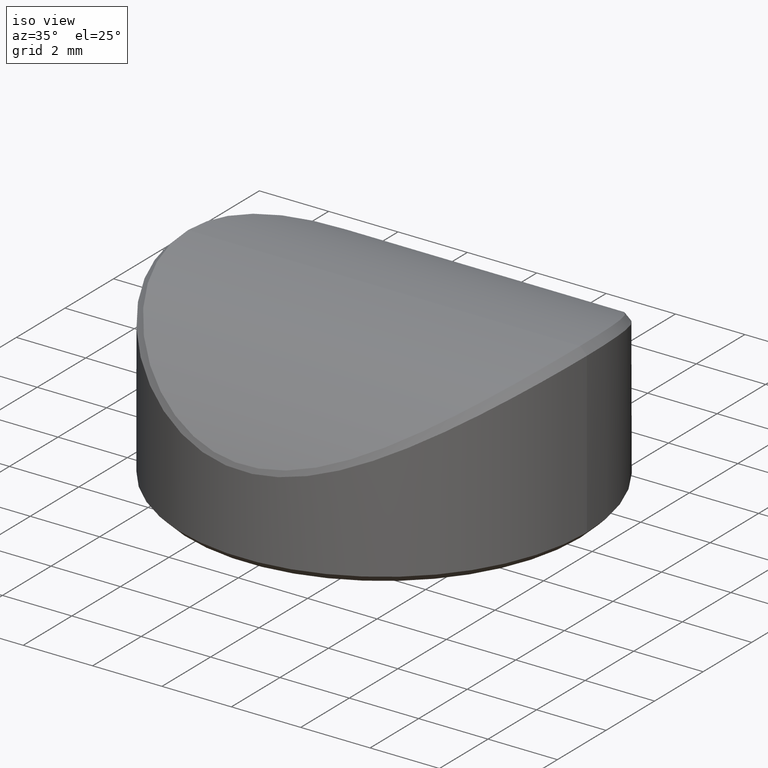
[diagram: clean part render]
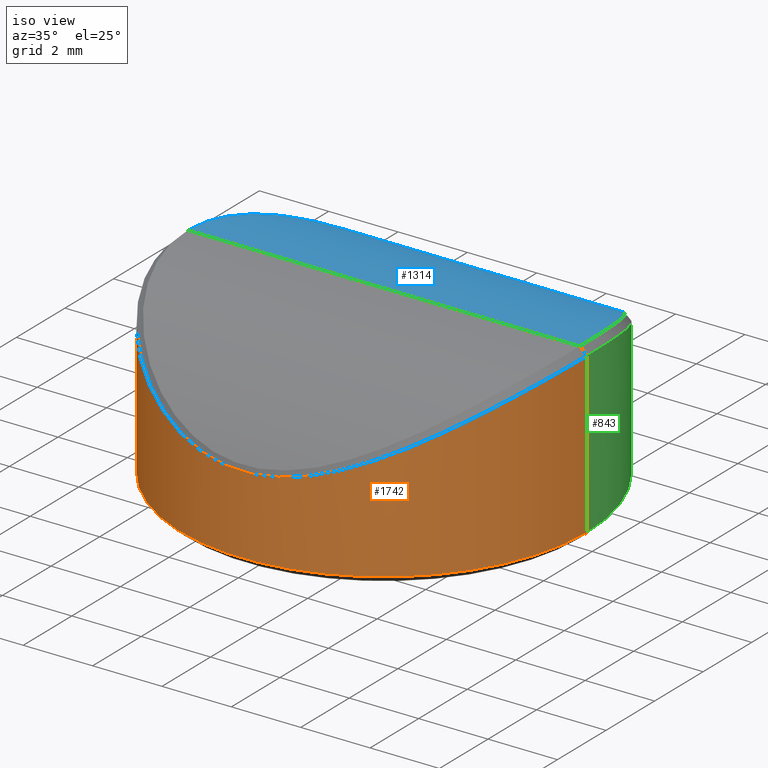
[diagram: same view with three faces highlighted in distinct colors, each labeled with its STEP entity id]
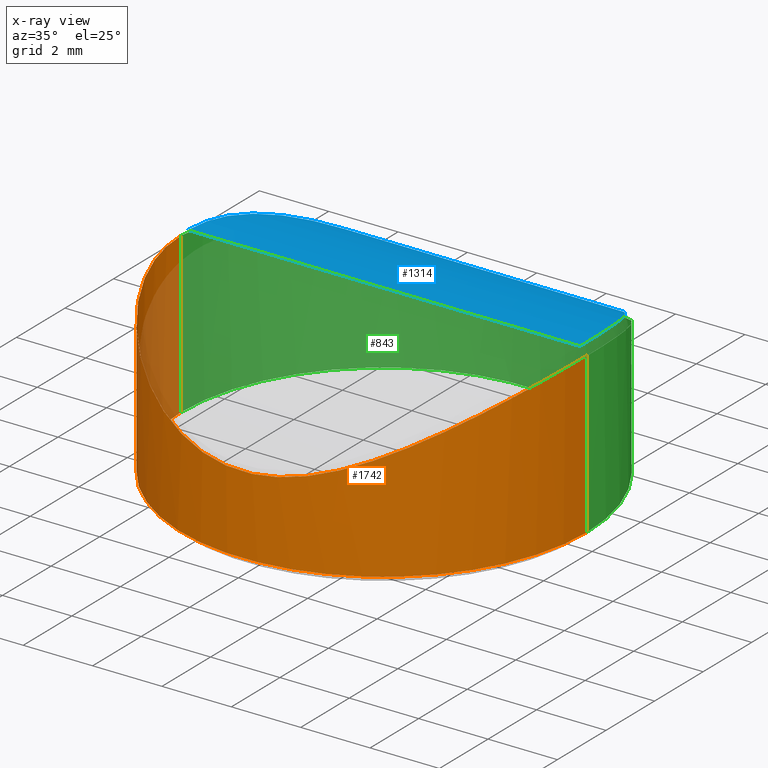
[diagram: x-ray of the same camera — body ghosted, the three highlighted faces saturated]
A machine part, iso view with three faces highlighted in distinct colors.
The next image is the same camera in x-ray (body ghosted, the three faces saturated) — at least one of them is partly hidden behind the body in this view.
Their STEP definitions:

[orange] entity #1742 — the highlighted cylindrical surface (partial cylindrical patch) has radius 5.85 mm, axis along (-0, -0, -1).
#21 = CARTESIAN_POINT ( 'NONE',  ( 5.849999999999999645, -0.1002571511563858653, 4.800000362256402475 ) ) ;
#32 = CARTESIAN_POINT ( 'NONE',  ( 5.636241397043481705, -1.567703619059801268, 4.655283694456312737 ) ) ;
#51 = CARTESIAN_POINT ( 'NONE',  ( -0.7992147437466824433, -5.795963841222624424, 2.509626842431964988 ) ) ;
#62 = CARTESIAN_POINT ( 'NONE',  ( 2.321190677145544612, -5.369832997426352783, 2.886756056087941058 ) ) ;
#67 = CARTESIAN_POINT ( 'NONE',  ( 5.032943372037465224, -2.982317061806385450, 4.262577148965410068 ) ) ;
#74 = CARTESIAN_POINT ( 'NONE',  ( 1.696475671454375611, -5.598830458218269968, 2.690693486021676684 ) ) ;
#78 = CARTESIAN_POINT ( 'NONE',  ( 4.322983038555126889, -3.941418766975174570, 3.834353924872196728 ) ) ;
#79 = CARTESIAN_POINT ( 'NONE',  ( -4.347329935835133163, -3.914792109759390293, 3.848327056161865656 ) ) ;
#87 = CARTESIAN_POINT ( 'NONE',  ( 0.1960758212890180707, -5.847575407008270609, 2.460168763548667314 ) ) ;
#91 = CARTESIAN_POINT ( 'NONE',  ( 4.175820359051846786, -4.097076429639918693, 3.750748920193274216 ) ) ;
#92 = CARTESIAN_POINT ( 'NONE',  ( -5.011083377229572200, -3.018909396968985970, 4.248814439983777724 ) ) ;
#99 = CARTESIAN_POINT ( 'NONE',  ( 1.790627716960177640, -5.569433057588820013, 2.716693745366328017 ) ) ;
#104 = CARTESIAN_POINT ( 'NONE',  ( 3.850442641268848831, -4.404174142716962059, 3.572890753826824639 ) ) ;
#105 = CARTESIAN_POINT ( 'NONE',  ( -5.416322344660787103, -2.212644334234725729, 4.509305661737005089 ) ) ;
#112 = CARTESIAN_POINT ( 'NONE',  ( -3.904387794470526973, -4.356419169627104182, 3.601700390990436595 ) ) ;
#117 = CARTESIAN_POINT ( 'NONE',  ( 4.123513641282251285, -4.149606723216765936, 3.721520050925323897 ) ) ;
#118 = CARTESIAN_POINT ( 'NONE',  ( -5.115733834783660505, -2.837668304563308652, 4.315019396862776802 ) ) ;
#125 = CARTESIAN_POINT ( 'NONE',  ( -1.977132171286536622, -5.505818000685767544, 2.772083576216765266 ) ) ;
#130 = CARTESIAN_POINT ( 'NONE',  ( -5.218612329882787115, -2.645301217034130126, 4.380778903306818073 ) ) ;
#133 = DIRECTION ( 'NONE',  ( -0.000000000000000000, -0.000000000000000000, -1.000000000000000000 ) ) ;
#166 = CARTESIAN_POINT ( 'NONE',  ( -3.485501356859809885, -4.698278379934207827, 3.385554629569242913 ) ) ;
#179 = CARTESIAN_POINT ( 'NONE',  ( -4.070020865524007547, -4.202169639958404090, 3.691843170774587346 ) ) ;
#191 = CARTESIAN_POINT ( 'NONE',  ( -3.475405370232810043, -4.705751476287893809, 3.380565041965954087 ) ) ;
#192 = ORIENTED_EDGE ( 'NONE', *, *, #537, .T. ) ;
#211 = CARTESIAN_POINT ( 'NONE',  ( 5.675008696903578453, -1.426005650508588296, 4.681293954273036739 ) ) ;
#223 = DIRECTION ( 'NONE',  ( -1.000000000000000000, 0.000000000000000000, 0.000000000000000000 ) ) ;
#231 = CARTESIAN_POINT ( 'NONE',  ( 2.102327943100051666, -5.459236307794311571, 2.811935416487588490 ) ) ;
#244 = CARTESIAN_POINT ( 'NONE',  ( -1.587494438388834084, -5.630851806157936679, 2.662101222322077465 ) ) ;
#248 = CARTESIAN_POINT ( 'NONE',  ( 4.006566576517870182, -4.262682047202536850, 3.657004758089502872 ) ) ;
#255 = CARTESIAN_POINT ( 'NONE',  ( -0.9914346284413013688, -5.765585076214239990, 2.538293393073890236 ) ) ;
#257 = VECTOR ( 'NONE', #133, 1000.000000000000000 ) ;
#260 = CARTESIAN_POINT ( 'NONE',  ( 3.664730233357058165, -4.560162655869373971, 3.475798596802699869 ) ) ;
#261 = CARTESIAN_POINT ( 'NONE',  ( -4.657189139760875563, -3.540290751993207863, 4.030992745122410348 ) ) ;
#268 = CARTESIAN_POINT ( 'NONE',  ( 3.280998405336094770, -4.843311128454959480, 3.286594779189646598 ) ) ;
#272 = CARTESIAN_POINT ( 'NONE',  ( 4.723299366382857301, -3.451594643023751185, 4.070959899425256268 ) ) ;
#273 = CARTESIAN_POINT ( 'NONE',  ( -5.565453593937636612, -1.802966329669035028, 4.607977361760977608 ) ) ;
#280 = CARTESIAN_POINT ( 'NONE',  ( 2.824514529974619492, -5.123000588333491478, 3.082524708902495192 ) ) ;
#284 = CARTESIAN_POINT ( 'NONE',  ( 3.545955274710585137, -4.652897645949978234, 3.415632318699482806 ) ) ;
#285 = CARTESIAN_POINT ( 'NONE',  ( -4.961241489788908332, -3.100137648661959844, 4.217567466933967779 ) ) ;
#291 = CARTESIAN_POINT ( 'NONE',  ( -2.772154596843895646, -5.151519540009843467, 3.060683043446253748 ) ) ;
#297 = CARTESIAN_POINT ( 'NONE',  ( 4.856010094929455789, -3.262474650794921605, 4.152193994138118072 ) ) ;
#300 = B_SPLINE_CURVE_WITH_KNOTS ( 'NONE', 3,
 ( #929, #21, #1705, #1331, #2065, #1307, #2226, #578, #1863, #941, #1123, #211, #32, #766, #478, #1753, #429, #976, #1389, #1207, #2282, #1365, #2318, #989, #2126, #1354, #1728, #1717, #1161, #67, #1945, #2292, #1195, #635, #297, #660, #1183, #272, #800, #824, #672, #1000, #1026, #1377, #648, #850, #1741, #1561, #1766, #78, #2305, #2076, #91, #1548, #2099, #117, #1584, #1899, #248, #836, #2112, #1538, #2270, #452, #811, #104, #625, #2088, #1011, #441, #1172, #464, #1911, #260, #1922, #1932, #284, #1572, #1401, #490, #1220, #1957, #308, #2140, #1327, #268, #2278, #448, #1361, #820, #1928, #1557, #1713, #1350, #425, #280, #1749, #1007, #631, #1157, #643, #2084, #412, #1895, #985, #62, #796, #1145, #2288, #231, #961, #2300, #996, #1373, #807, #99, #74, #1724, #1544, #2061, #831, #2095, #972, #1568, #1179, #1883, #1918, #1737, #87, #2108, #460, #1191, #1701, #1534, #1907, #51, #2266, #255, #785, #621, #1522, #2255, #610, #1338, #2072, #244, #437, #1168, #1634, #1034, #1262, #2194, #125, #1995, #1775, #1466, #357, #1383, #1940, #2376, #2207, #857, #2327, #922, #1952, #734, #2313, #304, #291, #2120, #1021, #554, #896, #542, #1593, #1286, #1648, #2181, #346, #1761, #1816, #1842, #1075, #2019, #2364, #722, #191, #166, #1454, #370, #682, #908, #655, #1274, #1441, #530, #1100, #1660, #473, #1202, #1829, #112, #845, #1579, #2006, #1087, #179, #666, #1396, #2134, #484, #1216, #1209, #1415, #1743, #1366, #79, #1730, #2100, #812, #1378, #502, #1390, #1562, #1933, #261, #1585, #1946, #1767, #1027, #1221, #862, #1780, #2113, #285, #92, #1598, #1232, #990, #118, #825, #130, #1012, #1549, #2294, #2306, #465, #105, #453, #1184, #1923, #273, #1001, #2319, #837, #2127, #1573, #673, #2360, #1629, #1968, #1473, #892, #364 ),
 .UNSPECIFIED., .F., .F.,
 ( 4, 2, 2, 1, 2, 2, 1, 2, 2, 1, 2, 2, 2, 1, 2, 2, 2, 2, 2, 2, 1, 2, 2, 1, 2, 2, 1, 2, 2, 1, 1, 2, 2, 2, 1, 2, 2, 1, 2, 2, 1, 2, 2, 2, 1, 2, 2, 2, 1, 2, 2, 1, 2, 2, 1, 2, 2, 1, 2, 2, 1, 2, 2, 1, 2, 2, 2, 2, 2, 2, 2, 2, 2, 2, 2, 2, 2, 2, 2, 2, 2, 2, 1, 2, 2, 1, 2, 2, 1, 2, 2, 1, 2, 2, 1, 2, 2, 1, 1, 2, 2, 1, 1, 2, 2, 2, 1, 1, 2, 2, 2, 1, 2, 2, 2, 1, 2, 2, 2, 1, 2, 2, 1, 1, 2, 2, 1, 2, 2, 1, 2, 2, 1, 2, 2, 2, 2, 1, 2, 2, 2, 1, 2, 2, 1, 2, 2, 1, 2, 2, 2, 2, 4 ),
 ( 0.5002157163491369740, 0.5080248457811816776, 0.5158339752132263811, 0.5236431046452710847, 0.5275476693612934920, 0.5314522340773157882, 0.5392613635093604918, 0.5431659282253827881, 0.5470704929414051954, 0.5548796223734498989, 0.5587841870894723062, 0.5626887518054946025, 0.5704978812375394170, 0.5744024459535617133, 0.5763547283115728614, 0.5783070106695840096, 0.5822115753856064169, 0.5861161401016288242, 0.5900207048176511204, 0.5939252695336735277, 0.5978298342496959350, 0.5997821166077070831, 0.6017343989657181202, 0.6056389636817404165, 0.6075912460397515646, 0.6095435283977627128, 0.6134480931137850090, 0.6154003754717960462, 0.6173526578298071943, 0.6212572225458294906, 0.6232095049038406387, 0.6241856460828461017, 0.6251617872618516758, 0.6290663519778740831, 0.6310186343358853422, 0.6319947755148909163, 0.6329709166938966014, 0.6349231990519079716, 0.6358993402309135456, 0.6368754814099192307, 0.6388277637679304899, 0.6398039049469361750, 0.6407800461259418601, 0.6446846108419646004, 0.6466368931999758596, 0.6476130343789815447, 0.6485891755579871187, 0.6524937402740095260, 0.6544460226320207852, 0.6554221638110262482, 0.6563983049900319333, 0.6603028697060543406, 0.6622551520640654887, 0.6642074344220767479, 0.6681119991380991552, 0.6700642814961103033, 0.6720165638541215625, 0.6759211285701438587, 0.6778734109281552289, 0.6798256932861663770, 0.6837302580021887843, 0.6856825403602000435, 0.6876348227182113027, 0.6915393874342337099, 0.6934916697922449691, 0.6954439521502562283, 0.6993485168662786355, 0.7032530815823010428, 0.7071576462983235611, 0.7110622110143460795, 0.7149667757303684867, 0.7188713404463908940, 0.7344895993104807452, 0.7422987287425257819, 0.7501078581745705964, 0.7579169876066156331, 0.7657261170386604476, 0.7735352464707054843, 0.7774398111867278915, 0.7813443759027502988, 0.7852489406187728171, 0.7891535053347953355, 0.7930580700508177427, 0.7950103524088290019, 0.7969626347668401500, 0.8008671994828626683, 0.8028194818408738165, 0.8047717641988851867, 0.8086763289149074829, 0.8106286112729186311, 0.8125808936309297792, 0.8164854583469521865, 0.8184377407049632236, 0.8203900230629743717, 0.8242945877789966680, 0.8262468701370078161, 0.8281991524950189643, 0.8321037172110412605, 0.8340559995690524087, 0.8350321407480578717, 0.8360082819270634458, 0.8399128466430856310, 0.8418651290010966681, 0.8428412701801022422, 0.8438174113591077052, 0.8477219760751297795, 0.8496742584331407055, 0.8506503996121461686, 0.8511384702016489001, 0.8516265407911516316, 0.8555311055071737059, 0.8574833878651847430, 0.8584595290441903170, 0.8594356702231957801, 0.8633402349392179653, 0.8652925172972290024, 0.8662686584762345765, 0.8672447996552401506, 0.8711493643712624468, 0.8731016467292735950, 0.8740777879082792801, 0.8750539290872847431, 0.8789584938033071504, 0.8809107761613184095, 0.8818869173403239836, 0.8828630585193295577, 0.8867676232353519650, 0.8887199055933630021, 0.8906721879513742612, 0.8945767526673966685, 0.8965290350254078167, 0.8984813173834189648, 0.9023858820994412611, 0.9043381644574525202, 0.9062904468154636684, 0.9101950115314860756, 0.9140995762475083719, 0.9180041409635306682, 0.9199564233215419273, 0.9219087056795530755, 0.9297178351115977790, 0.9336223998276201863, 0.9355746821856314455, 0.9375269645436425936, 0.9453360939756872972, 0.9492406586917097044, 0.9531452234077320007, 0.9609543528397767043, 0.9648589175557991116, 0.9687634822718214078, 0.9765726117038660004, 0.9843817411359107039, 1.000000000000000000 ),
 .UNSPECIFIED. ) ;
#304 = CARTESIAN_POINT ( 'NONE',  ( -2.749426597630278746, -5.163692456250189800, 3.051302327611246312 ) ) ;
#308 = CARTESIAN_POINT ( 'NONE',  ( 3.352889517868061553, -4.793866929213189465, 3.320858111415713854 ) ) ;
#346 = CARTESIAN_POINT ( 'NONE',  ( -3.228876305644311717, -4.878217572511937661, 3.262097021227638560 ) ) ;
#357 = CARTESIAN_POINT ( 'NONE',  ( -2.197548298980404713, -5.421609947704588706, 2.843689444679238232 ) ) ;
#364 = CARTESIAN_POINT ( 'NONE',  ( -5.850000000000002309, 3.388131789017201356E-18, 4.800000000000000711 ) ) ;
#370 = CARTESIAN_POINT ( 'NONE',  ( -3.523757843447768767, -4.669786984843736555, 3.404517442143560668 ) ) ;
#371 = VERTEX_POINT ( 'NONE', #433 ) ;
#406 = CARTESIAN_POINT ( 'NONE',  ( 0.000000000000000000, 0.000000000000000000, 0.1999999999999979294 ) ) ;
#407 = AXIS2_PLACEMENT_3D ( 'NONE', #1656, #952, #223 ) ;
#412 = CARTESIAN_POINT ( 'NONE',  ( 2.491909918651851186, -5.292939922117153806, 2.949448441946066701 ) ) ;
#417 = EDGE_CURVE ( 'NONE', #1089, #1996, #833, .T. ) ;
#425 = CARTESIAN_POINT ( 'NONE',  ( 2.864266221327193218, -5.100881920949268178, 3.099328813808565286 ) ) ;
#429 = CARTESIAN_POINT ( 'NONE',  ( 5.504899539683229648, -1.983714597653050360, 4.567694286595952669 ) ) ;
#433 = CARTESIAN_POINT ( 'NONE',  ( 5.849999999768836112, 1.100001536417089305E-14, 4.800000018381221700 ) ) ;
#437 = CARTESIAN_POINT ( 'NONE',  ( -1.657646656640590965, -5.610285780977731562, 2.680470387278625743 ) ) ;
#441 = CARTESIAN_POINT ( 'NONE',  ( 3.768399113868369454, -4.474660750664258835, 3.529599448587391830 ) ) ;
#448 = CARTESIAN_POINT ( 'NONE',  ( 3.221996449097165982, -4.882998521217618126, 3.258798724120576473 ) ) ;
#452 = CARTESIAN_POINT ( 'NONE',  ( 3.901621395178357599, -4.358925006982104833, 3.600207988405920378 ) ) ;
#453 = CARTESIAN_POINT ( 'NONE',  ( -5.470933895419377357, -2.075564845027245475, 4.545238901223839889 ) ) ;
#460 = CARTESIAN_POINT ( 'NONE',  ( -0.1044631214549669451, -5.849923170586751375, 2.457895446962670150 ) ) ;
#464 = CARTESIAN_POINT ( 'NONE',  ( 3.724314346017905564, -4.511331752465215672, 3.506641734277347044 ) ) ;
#465 = CARTESIAN_POINT ( 'NONE',  ( -5.367483781018553834, -2.326635559922540342, 4.477364926142710644 ) ) ;
#469 = CARTESIAN_POINT ( 'NONE',  ( -5.849999999999999645, 0.000000000000000000, 6.000000000000000000 ) ) ;
#473 = CARTESIAN_POINT ( 'NONE',  ( -3.835505972196564972, -4.417229970291717045, 3.564958798754494840 ) ) ;
#478 = CARTESIAN_POINT ( 'NONE',  ( 5.594494376540237290, -1.710673923368485116, 4.627348406536931691 ) ) ;
#484 = CARTESIAN_POINT ( 'NONE',  ( -4.157188060929417617, -4.116155157428956990, 3.740269693630526415 ) ) ;
#490 = CARTESIAN_POINT ( 'NONE',  ( 3.499023089858849023, -4.688229607807843813, 3.392250097244589480 ) ) ;
#502 = CARTESIAN_POINT ( 'NONE',  ( -4.528978234077456477, -3.703129585840629456, 3.954441545911321576 ) ) ;
#530 = CARTESIAN_POINT ( 'NONE',  ( -3.703816917700550881, -4.528175355604965091, 3.496020427087593863 ) ) ;
#537 = EDGE_CURVE ( 'NONE', #702, #1089, #678, .T. ) ;
#542 = CARTESIAN_POINT ( 'NONE',  ( -3.013748999224044933, -5.013976775512504425, 3.164212668440373744 ) ) ;
#554 = CARTESIAN_POINT ( 'NONE',  ( -2.961999804198462094, -5.044805255486211060, 3.141422444258974433 ) ) ;
#567 = AXIS2_PLACEMENT_3D ( 'NONE', #406, #582, #2069 ) ;
#578 = CARTESIAN_POINT ( 'NONE',  ( 5.765136857182577401, -0.9940710739806299934, 4.742217782123587355 ) ) ;
#582 = DIRECTION ( 'NONE',  ( -0.000000000000000000, -0.000000000000000000, 1.000000000000000000 ) ) ;
#599 = CARTESIAN_POINT ( 'NONE',  ( -5.850000000000002309, 3.388131789017201356E-18, 4.800000000000000711 ) ) ;
#610 = CARTESIAN_POINT ( 'NONE',  ( -1.375727725849500871, -5.686148180710914879, 2.611947779758022836 ) ) ;
#621 = CARTESIAN_POINT ( 'NONE',  ( -1.137834820810464054, -5.738481615359147803, 2.563645326624742093 ) ) ;
#625 = CARTESIAN_POINT ( 'NONE',  ( 3.831455995255485636, -4.420701682934383925, 3.562818767076923798 ) ) ;
#631 = CARTESIAN_POINT ( 'NONE',  ( 2.679306735442938958, -5.200730913605227101, 3.022612934130709306 ) ) ;
#635 = CARTESIAN_POINT ( 'NONE',  ( 4.883499728104176540, -3.221201072000503096, 4.169191561503999388 ) ) ;
#643 = CARTESIAN_POINT ( 'NONE',  ( 2.576338343245371032, -5.252190482804902416, 2.981985799186111841 ) ) ;
#648 = CARTESIAN_POINT ( 'NONE',  ( 4.506605439503701405, -3.730080706005884483, 3.941255339705101335 ) ) ;
#655 = CARTESIAN_POINT ( 'NONE',  ( -3.639745028704612917, -4.579947920136699047, 3.463069188902329731 ) ) ;
#660 = CARTESIAN_POINT ( 'NONE',  ( 4.804617941801256897, -3.337697008785800001, 4.120570215845685169 ) ) ;
#666 = CARTESIAN_POINT ( 'NONE',  ( -4.092674469711605312, -4.180026709950639408, 3.704388918439474487 ) ) ;
#672 = CARTESIAN_POINT ( 'NONE',  ( 4.639378622212648295, -3.563805010209286195, 4.020263025673698642 ) ) ;
#673 = CARTESIAN_POINT ( 'NONE',  ( -5.748656655795993942, -1.088749524800747270, 4.731040675981645904 ) ) ;
#678 = LINE ( 'NONE', #469, #257 ) ;
#682 = CARTESIAN_POINT ( 'NONE',  ( -3.556410194355744459, -4.645059234646698343, 3.420838466624991803 ) ) ;
#702 = VERTEX_POINT ( 'NONE', #599 ) ;
#722 = CARTESIAN_POINT ( 'NONE',  ( -3.460329492228689130, -4.716872960868554010, 3.373126454198756452 ) ) ;
#734 = CARTESIAN_POINT ( 'NONE',  ( -2.644539518257713162, -5.218500884807336426, 3.008691129424609922 ) ) ;
#754 = FACE_OUTER_BOUND ( 'NONE', #2196, .T. ) ;
#766 = CARTESIAN_POINT ( 'NONE',  ( 5.609127950535561347, -1.662105699852025165, 4.637128514996904372 ) ) ;
#785 = CARTESIAN_POINT ( 'NONE',  ( -1.088132804413554089, -5.748119770281062912, 2.554655210325784243 ) ) ;
#796 = CARTESIAN_POINT ( 'NONE',  ( 2.301220297038023777, -5.378426398769522443, 2.879658190348620916 ) ) ;
#800 = CARTESIAN_POINT ( 'NONE',  ( 4.695158031528607445, -3.489778437550924650, 4.053905353718022297 ) ) ;
#807 = CARTESIAN_POINT ( 'NONE',  ( 1.833404317679922624, -5.555484692172631966, 2.728945572657479612 ) ) ;
#811 = CARTESIAN_POINT ( 'NONE',  ( 3.877755793451842958, -4.380236733356795753, 3.587418988817553167 ) ) ;
#812 = CARTESIAN_POINT ( 'NONE',  ( -4.469480234282167785, -3.774488562058038621, 3.919413545498664497 ) ) ;
#820 = CARTESIAN_POINT ( 'NONE',  ( 3.103888854004396514, -4.958717409787228192, 3.204573505155610569 ) ) ;
#824 = CARTESIAN_POINT ( 'NONE',  ( 4.680235699694670792, -3.509758372461365905, 4.044887583351177263 ) ) ;
#825 = CARTESIAN_POINT ( 'NONE',  ( -5.174403619543121557, -2.730851951907253827, 4.352392773805803472 ) ) ;
#831 = CARTESIAN_POINT ( 'NONE',  ( 1.415459859564481171, -5.676393444962814172, 2.620860713784469720 ) ) ;
#833 = CIRCLE ( 'NONE', #567, 5.849999999999999645 ) ;
#836 = CARTESIAN_POINT ( 'NONE',  ( 3.980436128926511330, -4.287155019909585363, 3.642751696554179297 ) ) ;
#837 = CARTESIAN_POINT ( 'NONE',  ( -5.686019177371349542, -1.376249676385311371, 4.688737510718696377 ) ) ;
#845 = CARTESIAN_POINT ( 'NONE',  ( -3.912037245218193959, -4.349555484289218121, 3.605806457813484300 ) ) ;
#850 = CARTESIAN_POINT ( 'NONE',  ( 4.463866737055128375, -3.781318869989628517, 3.916096935327387563 ) ) ;
#857 = CARTESIAN_POINT ( 'NONE',  ( -2.455994361583406782, -5.309534717498427092, 2.936016500328536782 ) ) ;
#862 = CARTESIAN_POINT ( 'NONE',  ( -4.860984194753509513, -3.255088112927814858, 4.155263327361565118 ) ) ;
#892 = CARTESIAN_POINT ( 'NONE',  ( -5.850000000000000533, -0.1997877693801048127, 4.799999979756344182 ) ) ;
#896 = CARTESIAN_POINT ( 'NONE',  ( -2.993001208925106571, -5.026389350127540290, 3.155052767178201378 ) ) ;
#908 = CARTESIAN_POINT ( 'NONE',  ( -3.611027836787306100, -4.602554741979793640, 3.448467670315207290 ) ) ;
#922 = CARTESIAN_POINT ( 'NONE',  ( -2.522150937430927886, -5.278424066079629107, 2.961059110035554998 ) ) ;
#929 = CARTESIAN_POINT ( 'NONE',  ( 5.849999999768836112, 1.100001536417089305E-14, 4.800000018381221700 ) ) ;
#941 = CARTESIAN_POINT ( 'NONE',  ( 5.737556195965636263, -1.142486791642229216, 4.723534398927395905 ) ) ;
#952 = DIRECTION ( 'NONE',  ( -0.000000000000000000, -0.000000000000000000, -1.000000000000000000 ) ) ;
#961 = CARTESIAN_POINT ( 'NONE',  ( 2.058736348260596039, -5.475824001283239539, 2.797813271842366500 ) ) ;
#972 = CARTESIAN_POINT ( 'NONE',  ( 1.272000520493032028, -5.710246732684525206, 2.589812380817591464 ) ) ;
#976 = CARTESIAN_POINT ( 'NONE',  ( 5.452453125039382620, -2.120295788326579167, 4.533105349651840754 ) ) ;
#985 = CARTESIAN_POINT ( 'NONE',  ( 2.363484732813247557, -5.351352398943184596, 2.901955014391782495 ) ) ;
#989 = CARTESIAN_POINT ( 'NONE',  ( 5.206414122685895762, -2.668313953235640135, 4.372966314802951615 ) ) ;
#990 = CARTESIAN_POINT ( 'NONE',  ( -5.105075642244345957, -2.856788919189696685, 4.308242937719620969 ) ) ;
#996 = CARTESIAN_POINT ( 'NONE',  ( 1.969388720314775965, -5.508755252239096123, 2.769580200411768001 ) ) ;
#1000 = CARTESIAN_POINT ( 'NONE',  ( 4.597164460298596822, -3.618345978683195518, 3.994950479137347354 ) ) ;
#1001 = CARTESIAN_POINT ( 'NONE',  ( -5.610120192449659093, -1.660992653518652995, 4.637771942462510566 ) ) ;
#1007 = CARTESIAN_POINT ( 'NONE',  ( 2.742390340420880257, -5.167604210135688270, 3.048328664426375401 ) ) ;
#1011 = CARTESIAN_POINT ( 'NONE',  ( 3.794629080998622950, -4.452394440372919426, 3.543372001968582818 ) ) ;
#1012 = CARTESIAN_POINT ( 'NONE',  ( -5.280995664432168724, -2.517110066496965892, 4.421089239478230404 ) ) ;
#1021 = CARTESIAN_POINT ( 'NONE',  ( -2.890523004512240313, -5.086375630884480081, 3.110385060265684398 ) ) ;
#1026 = CARTESIAN_POINT ( 'NONE',  ( 4.552830597238083143, -3.673526891267133720, 3.968605949312683290 ) ) ;
#1027 = CARTESIAN_POINT ( 'NONE',  ( -4.808434197088144124, -3.331964481760882446, 4.122929742330821767 ) ) ;
#1034 = CARTESIAN_POINT ( 'NONE',  ( -1.796062816610421109, -5.567660886328270387, 2.718249812208732408 ) ) ;
#1075 = CARTESIAN_POINT ( 'NONE',  ( -3.340105268323252830, -4.802950666649356215, 3.314664332911195999 ) ) ;
#1087 = CARTESIAN_POINT ( 'NONE',  ( -4.045983049047347180, -4.225286861056980037, 3.678605565661516863 ) ) ;
#1089 = VERTEX_POINT ( 'NONE', #2044 ) ;
#1100 = CARTESIAN_POINT ( 'NONE',  ( -3.748179185102822331, -4.491743733964525198, 3.518997210770038464 ) ) ;
#1123 = CARTESIAN_POINT ( 'NONE',  ( 5.708123904418368255, -1.284184634532776981, 4.703636685972603537 ) ) ;
#1145 = CARTESIAN_POINT ( 'NONE',  ( 2.234370378221348652, -5.406702372319901251, 2.856198724494861896 ) ) ;
#1157 = CARTESIAN_POINT ( 'NONE',  ( 2.617367399164080677, -5.231865061747649648, 2.998079070889961617 ) ) ;
#1161 = CARTESIAN_POINT ( 'NONE',  ( 5.080475033540134078, -2.900604674348551626, 4.292616822620731298 ) ) ;
#1168 = CARTESIAN_POINT ( 'NONE',  ( -1.704530306637775050, -5.596219743386242840, 2.692989030940574402 ) ) ;
#1172 = CARTESIAN_POINT ( 'NONE',  ( 3.741974079025739641, -4.496694510488244312, 3.515825064143108580 ) ) ;
#1179 = CARTESIAN_POINT ( 'NONE',  ( 0.9825773857348718554, -5.770304788967117737, 2.534092188989641503 ) ) ;
#1183 = CARTESIAN_POINT ( 'NONE',  ( 4.764883848201017180, -3.394441077885894220, 4.096231053845847292 ) ) ;
#1184 = CARTESIAN_POINT ( 'NONE',  ( -5.519724283022702238, -1.938421200754895768, 4.577578675871202485 ) ) ;
#1191 = CARTESIAN_POINT ( 'NONE',  ( -0.2062770414832285348, -5.847197120422482186, 2.460535617205513947 ) ) ;
#1195 = CARTESIAN_POINT ( 'NONE',  ( 4.934590481693506447, -3.142375330642501297, 4.200932092971154219 ) ) ;
#1197 = CARTESIAN_POINT ( 'NONE',  ( 5.849999999999999645, 7.164183775012015436E-16, 6.000000000000000000 ) ) ;
#1202 = CARTESIAN_POINT ( 'NONE',  ( -3.861466847495289123, -4.394598649595049089, 3.578739525592676607 ) ) ;
#1207 = CARTESIAN_POINT ( 'NONE',  ( 5.396495626909007193, -2.258875895405461964, 4.496339688545263336 ) ) ;
#1209 = CARTESIAN_POINT ( 'NONE',  ( -4.262144563976424827, -4.007179910397247191, 3.799557678361920932 ) ) ;
#1216 = CARTESIAN_POINT ( 'NONE',  ( -4.207455083036200527, -4.064913791071526283, 3.768500926078461877 ) ) ;
#1220 = CARTESIAN_POINT ( 'NONE',  ( 3.448345356699924924, -4.725882491470696500, 3.367159061385986973 ) ) ;
#1221 = CARTESIAN_POINT ( 'NONE',  ( -4.820773507604545927, -3.314092527302159308, 4.130507985613026456 ) ) ;
#1232 = CARTESIAN_POINT ( 'NONE',  ( -5.082213750779416728, -2.897264853828552589, 4.293734159690635543 ) ) ;
#1262 = CARTESIAN_POINT ( 'NONE',  ( -1.863502944543798501, -5.545617004262528127, 2.737603655112099688 ) ) ;
#1268 = EDGE_CURVE ( 'NONE', #371, #1996, #1914, .T. ) ;
#1274 = CARTESIAN_POINT ( 'NONE',  ( -3.670503711437805183, -4.555226027015714330, 3.478851082602479217 ) ) ;
#1286 = CARTESIAN_POINT ( 'NONE',  ( -3.071625018556679798, -4.978907384416322301, 3.189954542867317056 ) ) ;
#1307 = CARTESIAN_POINT ( 'NONE',  ( 5.808834222437207373, -0.6997591344599952690, 4.771917544864654026 ) ) ;
#1327 = CARTESIAN_POINT ( 'NONE',  ( 3.298595728573255226, -4.831343440728667282, 3.294933202768802971 ) ) ;
#1331 = CARTESIAN_POINT ( 'NONE',  ( 5.837081487733842167, -0.4013452253058652497, 4.791173504682770812 ) ) ;
#1338 = CARTESIAN_POINT ( 'NONE',  ( -1.425612163881701200, -5.673834906344850104, 2.623191575941743015 ) ) ;
#1350 = CARTESIAN_POINT ( 'NONE',  ( 2.924415382838926547, -5.066958196258008584, 3.124968933817593886 ) ) ;
#1354 = CARTESIAN_POINT ( 'NONE',  ( 5.149305997743319985, -2.776282908279573025, 4.336416792488752669 ) ) ;
#1361 = CARTESIAN_POINT ( 'NONE',  ( 3.161872396383158090, -4.922275190141412793, 3.230906407985724815 ) ) ;
#1365 = CARTESIAN_POINT ( 'NONE',  ( 5.301967544099882801, -2.474036929210759350, 4.434640069222560044 ) ) ;
#1366 = CARTESIAN_POINT ( 'NONE',  ( -4.306191443555581699, -3.959717626113174127, 3.824726946122569693 ) ) ;
#1373 = CARTESIAN_POINT ( 'NONE',  ( 1.923875645503112741, -5.524806246167536905, 2.755689240419583186 ) ) ;
#1377 = CARTESIAN_POINT ( 'NONE',  ( 4.522794386420454948, -3.710444340799858409, 3.950813599809951615 ) ) ;
#1378 = CARTESIAN_POINT ( 'NONE',  ( -4.482860576592933022, -3.758595375189747845, 3.927271736865155294 ) ) ;
#1383 = CARTESIAN_POINT ( 'NONE',  ( -2.241841100422953925, -5.403445329773904682, 2.858879966528415029 ) ) ;
#1389 = CARTESIAN_POINT ( 'NONE',  ( 5.416184146284840573, -2.211300206729046813, 4.509252412193499815 ) ) ;
#1390 = CARTESIAN_POINT ( 'NONE',  ( -4.573659113906025198, -3.648000905746538347, 3.980937953726444434 ) ) ;
#1396 = CARTESIAN_POINT ( 'NONE',  ( -4.107473229965752815, -4.165485719102234086, 3.712599004116468482 ) ) ;
#1401 = CARTESIAN_POINT ( 'NONE',  ( 3.505496876386727134, -4.683384614422977599, 3.395466579526613238 ) ) ;
#1415 = CARTESIAN_POINT ( 'NONE',  ( -4.284755801185498925, -3.982899424557026613, 3.812464925289306361 ) ) ;
#1441 = CARTESIAN_POINT ( 'NONE',  ( -3.691454284578926437, -4.538264747427581014, 3.489634650649916736 ) ) ;
#1442 = ORIENTED_EDGE ( 'NONE', *, *, #417, .T. ) ;
#1445 = VECTOR ( 'NONE', #1925, 1000.000000000000000 ) ;
#1454 = CARTESIAN_POINT ( 'NONE',  ( -3.491483909048800793, -4.693832134843431980, 3.388517039828000232 ) ) ;
#1455 = ORIENTED_EDGE ( 'NONE', *, *, #1268, .F. ) ;
#1466 = CARTESIAN_POINT ( 'NONE',  ( -2.131356815302416940, -5.448278914658184924, 2.821286431972876318 ) ) ;
#1473 = CARTESIAN_POINT ( 'NONE',  ( -5.839756295344589176, -0.4000026772949766274, 4.792992069967005442 ) ) ;
#1522 = CARTESIAN_POINT ( 'NONE',  ( -1.232561992315424959, -5.718883655431633350, 2.581830368348808857 ) ) ;
#1534 = CARTESIAN_POINT ( 'NONE',  ( -0.5045231134893006786, -5.829025009660327328, 2.478047214087420347 ) ) ;
#1538 = CARTESIAN_POINT ( 'NONE',  ( 3.934062802818604432, -4.329643284452893148, 3.617662288736082310 ) ) ;
#1544 = CARTESIAN_POINT ( 'NONE',  ( 1.556325733207718720, -5.639388450097838401, 2.654402008088354137 ) ) ;
#1548 = CARTESIAN_POINT ( 'NONE',  ( 4.150283936141546448, -4.122837846086486735, 3.736457896417939128 ) ) ;
#1549 = CARTESIAN_POINT ( 'NONE',  ( -5.311205120209836039, -2.453047868255123554, 4.440677193043911508 ) ) ;
#1557 = CARTESIAN_POINT ( 'NONE',  ( 3.048662966318903322, -4.992869778142563497, 3.179720875035021876 ) ) ;
#1561 = CARTESIAN_POINT ( 'NONE',  ( 4.372548721756500001, -3.886372099126635504, 3.862927374747653797 ) ) ;
#1562 = CARTESIAN_POINT ( 'NONE',  ( -4.616264928472514129, -3.593483131663789631, 4.006424259695003265 ) ) ;
#1568 = CARTESIAN_POINT ( 'NONE',  ( 1.225546885975937750, -5.720401717542054065, 2.580427173097815885 ) ) ;
#1572 = CARTESIAN_POINT ( 'NONE',  ( 3.521471693895499744, -4.671384902367146097, 3.403417134204432593 ) ) ;
#1573 = CARTESIAN_POINT ( 'NONE',  ( -5.718346490852482589, -1.235109561557387492, 4.710546748848868148 ) ) ;
#1579 = CARTESIAN_POINT ( 'NONE',  ( -3.960171712027301893, -4.306069334487688138, 3.631712785491863382 ) ) ;
#1584 = CARTESIAN_POINT ( 'NONE',  ( 4.087861159792398169, -4.184913673370901144, 3.701689375599472420 ) ) ;
#1585 = CARTESIAN_POINT ( 'NONE',  ( -4.700274356954593280, -3.483130508318094787, 4.056977106365434516 ) ) ;
#1593 = CARTESIAN_POINT ( 'NONE',  ( -3.025053808278926226, -5.007161685460469691, 3.169225916127315301 ) ) ;
#1598 = CARTESIAN_POINT ( 'NONE',  ( -5.047415945530768333, -2.958027777213465548, 4.271692315523175409 ) ) ;
#1610 = CARTESIAN_POINT ( 'NONE',  ( 5.849999999999999645, 7.164183775012015436E-16, 0.1999999999999979294 ) ) ;
#1629 = CARTESIAN_POINT ( 'NONE',  ( -5.796531678950812783, -0.7953114516704916648, 4.763537758150483192 ) ) ;
#1634 = CARTESIAN_POINT ( 'NONE',  ( -1.729095836509281670, -5.588673808226450213, 2.699680739752085668 ) ) ;
#1648 = CARTESIAN_POINT ( 'NONE',  ( -3.129048665457919487, -4.943215683026599194, 3.215877473504308970 ) ) ;
#1656 = CARTESIAN_POINT ( 'NONE',  ( 0.000000000000000000, 0.000000000000000000, 6.000000000000000000 ) ) ;
#1660 = CARTESIAN_POINT ( 'NONE',  ( -3.783343740571468050, -4.462165038798336703, 3.537392394961037745 ) ) ;
#1661 = ORIENTED_EDGE ( 'NONE', *, *, #1875, .T. ) ;
#1701 = CARTESIAN_POINT ( 'NONE',  ( -0.4036381152295039909, -5.836894778463459943, 2.470468696729681390 ) ) ;
#1705 = CARTESIAN_POINT ( 'NONE',  ( 5.847422123846107489, -0.2006309793526596663, 4.798235120699385625 ) ) ;
#1713 = CARTESIAN_POINT ( 'NONE',  ( 2.986075233614319036, -5.030728845204266442, 3.151910941776387531 ) ) ;
#1717 = CARTESIAN_POINT ( 'NONE',  ( 5.103541090080879528, -2.859812253388262615, 4.307255227358968597 ) ) ;
#1724 = CARTESIAN_POINT ( 'NONE',  ( 1.649605844348987382, -5.612811455699461938, 2.678235138566081197 ) ) ;
#1728 = CARTESIAN_POINT ( 'NONE',  ( 5.137118813583457566, -2.798758607100703788, 4.328640686332184018 ) ) ;
#1730 = CARTESIAN_POINT ( 'NONE',  ( -4.394929649479723643, -3.861458682871670156, 3.875841031338302933 ) ) ;
#1737 = CARTESIAN_POINT ( 'NONE',  ( 0.3966548629167477857, -5.837400858949691518, 2.469982700758960092 ) ) ;
#1741 = CARTESIAN_POINT ( 'NONE',  ( 4.419491621545344806, -3.833331453390139032, 3.890123458999872330 ) ) ;
#1742 = ADVANCED_FACE ( 'NONE', ( #754 ), #2237, .T. ) ;
#1743 = CARTESIAN_POINT ( 'NONE',  ( -4.299648410902368489, -3.966817823464320103, 3.820980247737444824 ) ) ;
#1749 = CARTESIAN_POINT ( 'NONE',  ( 2.806174500732007360, -5.133075996359581339, 3.074832306091984879 ) ) ;
#1753 = CARTESIAN_POINT ( 'NONE',  ( 5.551561709232774255, -1.847093119881496603, 4.598711815809846115 ) ) ;
#1761 = CARTESIAN_POINT ( 'NONE',  ( -3.249197741769895842, -4.864705840725925157, 3.271611813564126781 ) ) ;
#1766 = CARTESIAN_POINT ( 'NONE',  ( 4.340670227026338424, -3.921944976311046105, 3.844524961262904217 ) ) ;
#1767 = CARTESIAN_POINT ( 'NONE',  ( -4.782142660285363611, -3.369590229111190105, 4.106821014477656462 ) ) ;
#1775 = CARTESIAN_POINT ( 'NONE',  ( -2.065942145037146016, -5.473253721667152405, 2.800031729468714037 ) ) ;
#1780 = CARTESIAN_POINT ( 'NONE',  ( -4.887036079643642950, -3.215828396046560567, 4.171382816039333363 ) ) ;
#1816 = CARTESIAN_POINT ( 'NONE',  ( -3.260710110521725102, -4.856992700369415772, 3.277023968335849968 ) ) ;
#1829 = CARTESIAN_POINT ( 'NONE',  ( -3.887244112838952326, -4.371723371658347901, 3.592516539843042533 ) ) ;
#1842 = CARTESIAN_POINT ( 'NONE',  ( -3.303902597167223121, -4.827883997077607958, 3.297392542578605923 ) ) ;
#1863 = CARTESIAN_POINT ( 'NONE',  ( 5.747376961995175115, -1.092079822584934190, 4.730182018415757028 ) ) ;
#1875 = EDGE_CURVE ( 'NONE', #371, #702, #300, .T. ) ;
#1883 = CARTESIAN_POINT ( 'NONE',  ( 0.7918767425708327368, -5.799587333869446582, 2.506216826225676986 ) ) ;
#1895 = CARTESIAN_POINT ( 'NONE',  ( 2.427241580465172355, -5.323046430306599852, 2.925132762376092987 ) ) ;
#1899 = CARTESIAN_POINT ( 'NONE',  ( 4.056891555300922825, -4.215004955985200752, 3.684569018624221926 ) ) ;
#1907 = CARTESIAN_POINT ( 'NONE',  ( -0.6992000159351721145, -5.808889349351281872, 2.497310065330811124 ) ) ;
#1911 = CARTESIAN_POINT ( 'NONE',  ( 3.716192917813346153, -4.518029121563750472, 3.502426541324719089 ) ) ;
#1914 = LINE ( 'NONE', #1197, #1445 ) ;
#1918 = CARTESIAN_POINT ( 'NONE',  ( 0.4942387123048823105, -5.829937701203170342, 2.477169840549702240 ) ) ;
#1922 = CARTESIAN_POINT ( 'NONE',  ( 3.626032459248420103, -4.590911825277580682, 3.456039454402790589 ) ) ;
#1923 = CARTESIAN_POINT ( 'NONE',  ( -5.550978557919523659, -1.847016502807758087, 4.598339977894000619 ) ) ;
#1925 = DIRECTION ( 'NONE',  ( -0.000000000000000000, -0.000000000000000000, -1.000000000000000000 ) ) ;
#1928 = CARTESIAN_POINT ( 'NONE',  ( 3.065724908170369467, -4.982402548526508212, 3.187364772892139264 ) ) ;
#1932 = CARTESIAN_POINT ( 'NONE',  ( 3.571982210440006522, -4.632921732994125463, 3.428715560629490788 ) ) ;
#1933 = CARTESIAN_POINT ( 'NONE',  ( -4.644216691312887946, -3.557284671140099164, 4.023190663263696010 ) ) ;
#1940 = CARTESIAN_POINT ( 'NONE',  ( -2.265269816654751800, -5.393660172882778880, 2.867025482130089564 ) ) ;
#1945 = CARTESIAN_POINT ( 'NONE',  ( 5.007512123774266577, -3.024803031562292244, 4.246571018120217644 ) ) ;
#1946 = CARTESIAN_POINT ( 'NONE',  ( -4.742112871127906359, -3.426169343319453997, 4.082354377787363653 ) ) ;
#1952 = CARTESIAN_POINT ( 'NONE',  ( -2.582926371923891296, -5.249096612506703785, 2.984477231271569497 ) ) ;
#1957 = CARTESIAN_POINT ( 'NONE',  ( 3.409236548638389319, -4.754126541391376470, 3.348056513135837076 ) ) ;
#1968 = CARTESIAN_POINT ( 'NONE',  ( -5.808910245728824862, -0.6993752138742599378, 4.771968370964469131 ) ) ;
#1995 = CARTESIAN_POINT ( 'NONE',  ( -2.001087103913146148, -5.497152100374202099, 2.779542567099352546 ) ) ;
#1996 = VERTEX_POINT ( 'NONE', #1610 ) ;
#2006 = CARTESIAN_POINT ( 'NONE',  ( -3.996012119499563031, -4.272762421011661260, 3.651207878837790854 ) ) ;
#2019 = CARTESIAN_POINT ( 'NONE',  ( -3.396736728243643810, -4.762899765524959861, 3.342037414817662810 ) ) ;
#2044 = CARTESIAN_POINT ( 'NONE',  ( -5.849999999999999645, 0.000000000000000000, 0.1999999999999979294 ) ) ;
#2061 = CARTESIAN_POINT ( 'NONE',  ( 1.511680602827812026, -5.651529961973950300, 2.643440079836124834 ) ) ;
#2065 = CARTESIAN_POINT ( 'NONE',  ( 5.829112993775117602, -0.5036462804587722442, 4.785737026868440047 ) ) ;
#2069 = DIRECTION ( 'NONE',  ( 1.000000000000000000, 0.000000000000000000, 0.000000000000000000 ) ) ;
#2072 = CARTESIAN_POINT ( 'NONE',  ( -1.517888859498037091, -5.649848316236151469, 2.644958458974649318 ) ) ;
#2076 = CARTESIAN_POINT ( 'NONE',  ( 4.233359827654147978, -4.037939633342206847, 3.783146922964075287 ) ) ;
#2084 = CARTESIAN_POINT ( 'NONE',  ( 2.557134362406500827, -5.261572566073202672, 2.974522742573145084 ) ) ;
#2088 = CARTESIAN_POINT ( 'NONE',  ( 3.820727188305570898, -4.429974636642813657, 3.557143334641050814 ) ) ;
#2095 = CARTESIAN_POINT ( 'NONE',  ( 1.367515282275408639, -5.688128429018814103, 2.610135173980763224 ) ) ;
#2099 = CARTESIAN_POINT ( 'NONE',  ( 4.133062493701041618, -4.140101819868605482, 3.726840288246605848 ) ) ;
#2100 = CARTESIAN_POINT ( 'NONE',  ( -4.439991013877637727, -3.809133400976099981, 3.902145771208661795 ) ) ;
#2108 = CARTESIAN_POINT ( 'NONE',  ( 0.09567323066587260505, -5.850073527610214263, 2.457751346386143787 ) ) ;
#2112 = CARTESIAN_POINT ( 'NONE',  ( 3.952813807244624833, -4.312531056396609053, 3.627792238116910983 ) ) ;
#2113 = CARTESIAN_POINT ( 'NONE',  ( -4.937673144542126025, -3.137524156755700844, 4.202853648419028865 ) ) ;
#2120 = CARTESIAN_POINT ( 'NONE',  ( -2.830790977554333399, -5.119677837620342231, 3.085095935959836222 ) ) ;
#2126 = CARTESIAN_POINT ( 'NONE',  ( 5.172356309107040140, -2.733098837737349296, 4.351152527773477274 ) ) ;
#2127 = CARTESIAN_POINT ( 'NONE',  ( -5.708168529799181101, -1.281284235677512262, 4.703672797007214967 ) ) ;
#2134 = CARTESIAN_POINT ( 'NONE',  ( -4.113322623080660101, -4.159715118169216908, 3.715848578222741949 ) ) ;
#2140 = CARTESIAN_POINT ( 'NONE',  ( 3.325294673569076487, -4.813080524808381000, 3.307622765719427260 ) ) ;
#2181 = CARTESIAN_POINT ( 'NONE',  ( -3.198564019091887811, -4.898234687984161617, 3.247955905041528535 ) ) ;
#2194 = CARTESIAN_POINT ( 'NONE',  ( -1.931597225694446252, -5.521957591027038426, 2.758134653685553772 ) ) ;
#2196 = EDGE_LOOP ( 'NONE', ( #1455, #1661, #192, #1442 ) ) ;
#2207 = CARTESIAN_POINT ( 'NONE',  ( -2.391569149724247723, -5.339172767904159400, 2.911998154341806089 ) ) ;
#2226 = CARTESIAN_POINT ( 'NONE',  ( 5.789853745222838022, -0.8469699823933004579, 4.758989922008847628 ) ) ;
#2237 = CYLINDRICAL_SURFACE ( 'NONE', #407, 5.849999999999999645 ) ;
#2255 = CARTESIAN_POINT ( 'NONE',  ( -1.280148779584870500, -5.708425966131157381, 2.591490858975464828 ) ) ;
#2266 = CARTESIAN_POINT ( 'NONE',  ( -0.9432456636349142443, -5.773659834271454017, 2.530692067856780803 ) ) ;
#2270 = CARTESIAN_POINT ( 'NONE',  ( 3.923250182599852476, -4.339435699106750199, 3.611837497726043456 ) ) ;
#2278 = CARTESIAN_POINT ( 'NONE',  ( 3.273199436172008703, -4.848589246451616042, 3.282908661624468483 ) ) ;
#2282 = CARTESIAN_POINT ( 'NONE',  ( 5.341312712534691087, -2.387806515462018275, 4.460247327823969599 ) ) ;
#2288 = CARTESIAN_POINT ( 'NONE',  ( 2.167975040871612524, -5.433808327478917732, 2.833498008269742741 ) ) ;
#2292 = CARTESIAN_POINT ( 'NONE',  ( 4.959383432255190627, -3.103083469932351957, 4.216407984294399114 ) ) ;
#2294 = CARTESIAN_POINT ( 'NONE',  ( -5.339973276660957779, -2.389085252803851755, 4.459414324829546139 ) ) ;
#2300 = CARTESIAN_POINT ( 'NONE',  ( 2.038035344507787894, -5.483566907108068378, 2.791195329566743766 ) ) ;
#2305 = CARTESIAN_POINT ( 'NONE',  ( 4.279257201910453112, -3.989024290863026234, 3.809291977844793564 ) ) ;
#2306 = CARTESIAN_POINT ( 'NONE',  ( -5.358835430935816824, -2.346470917093351982, 4.471716674513294798 ) ) ;
#2313 = CARTESIAN_POINT ( 'NONE',  ( -2.707322139699728236, -5.185891748810771418, 3.034098692953186571 ) ) ;
#2318 = CARTESIAN_POINT ( 'NONE',  ( 5.238934377756661931, -2.603530531222212119, 4.393910654139628669 ) ) ;
#2319 = CARTESIAN_POINT ( 'NONE',  ( -5.650917394569209051, -1.518698351266284607, 4.665102639407791685 ) ) ;
#2327 = CARTESIAN_POINT ( 'NONE',  ( -2.499144352880235509, -5.289361466558832880, 2.952284065966502169 ) ) ;
#2360 = CARTESIAN_POINT ( 'NONE',  ( -5.766303994399804900, -0.9909783319565510507, 4.743005139650823487 ) ) ;
#2364 = CARTESIAN_POINT ( 'NONE',  ( -3.425633979428553744, -4.742211372709652650, 3.356090304872790142 ) ) ;
#2376 = CARTESIAN_POINT ( 'NONE',  ( -2.328082448233424362, -5.366991869323380904, 2.889128815765729552 ) ) ;

[blue] entity #1314 — the highlighted cylindrical surface (partial cylindrical patch) has radius 8.1858 mm, axis along (-1, 0, 0).
#8 = CARTESIAN_POINT ( 'NONE',  ( -4.997573339756211652, 2.703359133368292699, 4.541233286791081625 ) ) ;
#24 = CARTESIAN_POINT ( 'NONE',  ( 5.649996173019852463, 0.006866486706179850477, 4.999997232829611171 ) ) ;
#44 = CARTESIAN_POINT ( 'NONE',  ( -5.332172782546074963, 1.917459963393989053, 4.772796091960745279 ) ) ;
#55 = CARTESIAN_POINT ( 'NONE',  ( -2.774483501980424816, 5.045946878703079896, 3.260034132456782974 ) ) ;
#81 = CARTESIAN_POINT ( 'NONE',  ( 5.263774336406246590, 2.106689358253411193, 4.724809511567381826 ) ) ;
#94 = CARTESIAN_POINT ( 'NONE',  ( 40.00000000000000000, 4.336808689942017736E-16, -3.185792682926825936 ) ) ;
#132 = CARTESIAN_POINT ( 'NONE',  ( 1.362908287868246582, 5.620684464021909577, 2.765289409426068712 ) ) ;
#142 = CARTESIAN_POINT ( 'NONE',  ( -2.287775239600460697, 5.296287487222483215, 3.055905486220048761 ) ) ;
#152 = CARTESIAN_POINT ( 'NONE',  ( -0.1965669161501562012, 5.791298180636295534, 2.599366546559666258 ) ) ;
#162 = CARTESIAN_POINT ( 'NONE',  ( 3.714069972717543688, 4.365314621495971714, 3.739262450427358608 ) ) ;
#167 = EDGE_CURVE ( 'NONE', #1817, #2020, #1115, .T. ) ;
#168 = ORIENTED_EDGE ( 'NONE', *, *, #167, .F. ) ;
#175 = CARTESIAN_POINT ( 'NONE',  ( 2.242800134976429494, 5.315708254529181609, 3.039204809765963855 ) ) ;
#188 = CARTESIAN_POINT ( 'NONE',  ( -4.717935496593285372, 3.187864811105847185, 4.354224030696042469 ) ) ;
#226 = CARTESIAN_POINT ( 'NONE',  ( 5.649997636085528185, 0.005463417165336185641, 4.999998291568933162 ) ) ;
#263 = CARTESIAN_POINT ( 'NONE',  ( 5.328795215113704131, 1.927298694780969379, 4.770417902069668870 ) ) ;
#275 = CARTESIAN_POINT ( 'NONE',  ( 4.905304252590255487, 2.875405745711411054, 4.478859253043407485 ) ) ;
#320 = CARTESIAN_POINT ( 'NONE',  ( 1.725396804512487670, 5.515058224511028229, 2.863316219112020722 ) ) ;
#330 = CARTESIAN_POINT ( 'NONE',  ( 2.028640076937382908, 5.406148294771700336, 2.960967883142455737 ) ) ;
#343 = CARTESIAN_POINT ( 'NONE',  ( -1.098579910298393747, 5.681166764282801651, 2.707570037193654855 ) ) ;
#353 = CARTESIAN_POINT ( 'NONE',  ( 3.294421073696404800, 4.705981335949988242, 3.512365333441559656 ) ) ;
#365 = CARTESIAN_POINT ( 'NONE',  ( -5.267410228169655539, 2.097124714243697063, 4.727351820486060952 ) ) ;
#391 = CARTESIAN_POINT ( 'NONE',  ( -2.890155721725059301, 4.977913958564240460, 3.312964719141718195 ) ) ;
#402 = CARTESIAN_POINT ( 'NONE',  ( -5.495053782359788919, 1.361258811421440118, 4.888358439856832938 ) ) ;
#416 = CARTESIAN_POINT ( 'NONE',  ( -2.657721942051534114, 5.110951534947669295, 3.208434526241047191 ) ) ;
#444 = CARTESIAN_POINT ( 'NONE',  ( 5.359098958901085119, 1.836877352407754849, 4.791787070337501397 ) ) ;
#455 = CARTESIAN_POINT ( 'NONE',  ( 5.037738169115237419, 2.628831563378569935, 4.568369365675149396 ) ) ;
#504 = CARTESIAN_POINT ( 'NONE',  ( -1.597177804895139941, 5.555489630534117929, 2.826200630656607871 ) ) ;
#515 = CARTESIAN_POINT ( 'NONE',  ( 2.767872272878903583, 5.049150052583300408, 3.257351372635915787 ) ) ;
#526 = CARTESIAN_POINT ( 'NONE',  ( -1.461413207085216825, 5.594619742039023791, 2.789799676267267436 ) ) ;
#539 = CARTESIAN_POINT ( 'NONE',  ( 4.450409030311415215, 3.572712435574668444, 4.180870220721884856 ) ) ;
#550 = CARTESIAN_POINT ( 'NONE',  ( 4.712230307022413633, 3.196670409206264107, 4.350478470515946938 ) ) ;
#564 = CARTESIAN_POINT ( 'NONE',  ( -4.226190995206087209, 3.848243635872140356, 4.040789415266945461 ) ) ;
#589 = CARTESIAN_POINT ( 'NONE',  ( -4.398932661323080140, 3.635656895065598082, 4.148750063761411866 ) ) ;
#592 = CARTESIAN_POINT ( 'NONE',  ( 5.650000006473463010, 0.001357543372489800190, 5.000000000000000888 ) ) ;
#601 = CARTESIAN_POINT ( 'NONE',  ( -5.649999999999995026, -5.687896117688145790E-16, 5.000000000000002665 ) ) ;
#614 = CARTESIAN_POINT ( 'NONE',  ( -4.105222615981144685, 3.983414576646508554, 3.966963756991172652 ) ) ;
#637 = CYLINDRICAL_SURFACE ( 'NONE', #1678, 8.185792682926827268 ) ;
#674 = B_SPLINE_CURVE_WITH_KNOTS ( 'NONE', 3,
 ( #1671, #592, #758, #226, #24, #944 ),
 .UNSPECIFIED., .F., .F.,
 ( 4, 2, 4 ),
 ( 0.4997844696044921875, 0.4998922348022460938, 0.5000000000000000000 ),
 .UNSPECIFIED. ) ;
#676 = DIRECTION ( 'NONE',  ( -1.000000000000000000, 0.000000000000000000, 0.000000000000000000 ) ) ;
#688 = CARTESIAN_POINT ( 'NONE',  ( 1.499024357883120384, 5.584774705162296016, 2.799069354337397453 ) ) ;
#699 = CARTESIAN_POINT ( 'NONE',  ( 1.589646487044178436, 5.558399208058787622, 2.823611248759383408 ) ) ;
#708 = CARTESIAN_POINT ( 'NONE',  ( -0.3885331823604512569, 5.781068596293422956, 2.609656573420511272 ) ) ;
#717 = CARTESIAN_POINT ( 'NONE',  ( 3.647471019139307824, 4.423935191786042331, 3.701940352193913153 ) ) ;
#731 = CARTESIAN_POINT ( 'NONE',  ( 0.9474449447564073923, 5.712891200895650279, 2.677064363150671422 ) ) ;
#742 = CARTESIAN_POINT ( 'NONE',  ( -3.118446020245593697, 4.829659735107387775, 3.423485468425686573 ) ) ;
#758 = CARTESIAN_POINT ( 'NONE',  ( 5.649999535198922729, 0.002721735549251738141, 4.999999662302739623 ) ) ;
#778 = CARTESIAN_POINT ( 'NONE',  ( -3.079856290777347905, 4.855618729622498186, 3.404436536092900756 ) ) ;
#789 = CARTESIAN_POINT ( 'NONE',  ( -4.454806916883435441, 3.563460433455271303, 4.184116416474971345 ) ) ;
#814 = CARTESIAN_POINT ( 'NONE',  ( 5.119522249334758968, 2.457310434240666197, 4.624549929377425705 ) ) ;
#864 = CARTESIAN_POINT ( 'NONE',  ( -1.325513205418416440, 5.630686408895590134, 2.755895749344737578 ) ) ;
#876 = CARTESIAN_POINT ( 'NONE',  ( -2.370227903508232981, 5.258074066385649559, 3.088170860927138772 ) ) ;
#884 = CARTESIAN_POINT ( 'NONE',  ( -2.119092032618979271, 5.368933328190585108, 2.993389380585595561 ) ) ;
#887 = ORIENTED_EDGE ( 'NONE', *, *, #1088, .T. ) ;
#893 = CARTESIAN_POINT ( 'NONE',  ( 2.844918654405892866, 5.003955616701688314, 3.292513404339741712 ) ) ;
#903 = CARTESIAN_POINT ( 'NONE',  ( -5.649999999999995026, -5.687896117688145790E-16, 5.000000000000002665 ) ) ;
#904 = CARTESIAN_POINT ( 'NONE',  ( 2.223209967781147878, 5.324352279310299529, 3.031813528220262732 ) ) ;
#918 = CARTESIAN_POINT ( 'NONE',  ( -4.908182086785243925, 2.870282806302954626, 4.480794403417551308 ) ) ;
#923 = ORIENTED_EDGE ( 'NONE', *, *, #1524, .T. ) ;
#944 = CARTESIAN_POINT ( 'NONE',  ( 5.649994302125649348, 0.008225044492211699282, 4.999995867756699575 ) ) ;
#965 = CARTESIAN_POINT ( 'NONE',  ( -5.650000097776532115, 0.3927719394238598505, 5.000000000000000888 ) ) ;
#981 = VECTOR ( 'NONE', #2007, 1000.000000000000000 ) ;
#1040 = CARTESIAN_POINT ( 'NONE',  ( -1.049603939625384008, 5.690901667151242904, 2.698167525981503001 ) ) ;
#1051 = CARTESIAN_POINT ( 'NONE',  ( -1.990110316636560572, 5.420548185663980334, 2.948156283666594213 ) ) ;
#1061 = CARTESIAN_POINT ( 'NONE',  ( -1.644219679525181110, 5.541036491532474351, 2.839526579075042800 ) ) ;
#1072 = CARTESIAN_POINT ( 'NONE',  ( -1.234804881221707840, 5.652296909160115845, 2.735309741885084023 ) ) ;
#1083 = CARTESIAN_POINT ( 'NONE',  ( 2.406689490631471529, 5.240016419317651497, 3.103094976329009658 ) ) ;
#1088 = EDGE_CURVE ( 'NONE', #1817, #1300, #674, .T. ) ;
#1109 = CARTESIAN_POINT ( 'NONE',  ( 5.649999999509654813, -1.430433877363251500E-15, 4.999999999692656516 ) ) ;
#1115 = LINE ( 'NONE', #2346, #981 ) ;
#1149 = CARTESIAN_POINT ( 'NONE',  ( -2.534041628680796521, 5.176552667259932683, 3.155442372303915555 ) ) ;
#1223 = CARTESIAN_POINT ( 'NONE',  ( 5.401244531232637591, 1.700222600844834009, 4.821617558552038219 ) ) ;
#1234 = CARTESIAN_POINT ( 'NONE',  ( -1.774325362769775927, 5.499297961189520301, 2.877733257370830966 ) ) ;
#1245 = CARTESIAN_POINT ( 'NONE',  ( 2.115271689405620936, 5.371166947348804399, 2.991601991472573108 ) ) ;
#1258 = CARTESIAN_POINT ( 'NONE',  ( 1.182741787098672726, 5.663398603656724539, 2.724647795748769585 ) ) ;
#1271 = CARTESIAN_POINT ( 'NONE',  ( 3.911412308355492584, 4.180294900054634333, 3.852525596710284272 ) ) ;
#1282 = CARTESIAN_POINT ( 'NONE',  ( 1.898271173583305993, 5.455052118850436393, 2.917492004594394839 ) ) ;
#1296 = CARTESIAN_POINT ( 'NONE',  ( -4.863105771681799361, 2.949754981589081559, 4.450536105133604536 ) ) ;
#1300 = VERTEX_POINT ( 'NONE', #1745 ) ;
#1314 = ADVANCED_FACE ( 'NONE', ( #1959 ), #637, .T. ) ;
#1319 = CARTESIAN_POINT ( 'NONE',  ( -5.361712162587253694, 1.828963239350879899, 4.793631956994133247 ) ) ;
#1403 = CARTESIAN_POINT ( 'NONE',  ( 5.441868902315700751, 1.558221444162001701, 4.850465435948228432 ) ) ;
#1417 = CARTESIAN_POINT ( 'NONE',  ( 1.317505785151069198, 5.632045275637342030, 2.754534623315425090 ) ) ;
#1427 = CARTESIAN_POINT ( 'NONE',  ( 3.073311414097717353, 4.860633863342401995, 3.400973434922908822 ) ) ;
#1437 = CARTESIAN_POINT ( 'NONE',  ( -0.7663664573350099651, 5.738814324288018298, 2.651471024158077672 ) ) ;
#1451 = CARTESIAN_POINT ( 'NONE',  ( 3.508267204084488444, 4.540687404275008276, 3.625538085790460663 ) ) ;
#1462 = CARTESIAN_POINT ( 'NONE',  ( 0.3764842690645318624, 5.782012191892574648, 2.608715205060722742 ) ) ;
#1475 = CARTESIAN_POINT ( 'NONE',  ( -4.614784184288736490, 3.342750052662882165, 4.286847826359128533 ) ) ;
#1490 = CARTESIAN_POINT ( 'NONE',  ( -3.004193931193282818, 4.905175313653581171, 3.367634630243410143 ) ) ;
#1501 = CARTESIAN_POINT ( 'NONE',  ( -5.121234088997698386, 2.448135248464681002, 4.625858860653325522 ) ) ;
#1524 = EDGE_CURVE ( 'NONE', #1300, #2020, #2138, .T. ) ;
#1564 = CARTESIAN_POINT ( 'NONE',  ( 4.859229456071765263, 2.956471107744594207, 4.447940808222512032 ) ) ;
#1587 = CARTESIAN_POINT ( 'NONE',  ( 5.512375469142351214, 1.274229591490905422, 4.900792575464020473 ) ) ;
#1600 = CARTESIAN_POINT ( 'NONE',  ( 4.221674491251416583, 3.853377007995190784, 4.038020861009505857 ) ) ;
#1612 = CARTESIAN_POINT ( 'NONE',  ( -2.493179164274575310, 5.197357617014445097, 3.138396241042568757 ) ) ;
#1620 = CARTESIAN_POINT ( 'NONE',  ( 2.959938949718549317, 4.934632530085642621, 3.345876798513125028 ) ) ;
#1630 = CARTESIAN_POINT ( 'NONE',  ( 4.559796884735167311, 3.424800492790700979, 4.250972370121430366 ) ) ;
#1644 = CARTESIAN_POINT ( 'NONE',  ( 1.767551033019450157, 5.501003118969976846, 2.876103197347235962 ) ) ;
#1667 = CARTESIAN_POINT ( 'NONE',  ( -5.159234873062490401, 2.362847413906482785, 4.652102821048239356 ) ) ;
#1671 = CARTESIAN_POINT ( 'NONE',  ( 5.649999999509654813, -1.430433877363251500E-15, 4.999999999692656516 ) ) ;
#1678 = AXIS2_PLACEMENT_3D ( 'NONE', #94, #676, #2115 ) ;
#1693 = CARTESIAN_POINT ( 'NONE',  ( -3.723978907610514977, 4.370892510558475941, 3.741815752202982903 ) ) ;
#1745 = CARTESIAN_POINT ( 'NONE',  ( 5.649994302125649348, 0.008225044492211699282, 4.999995867756699575 ) ) ;
#1769 = CARTESIAN_POINT ( 'NONE',  ( 5.609240405713441291, 0.7965503495934576073, 4.970299206671443315 ) ) ;
#1782 = CARTESIAN_POINT ( 'NONE',  ( 2.345425050442076831, 5.269271517389708670, 3.078634491854980837 ) ) ;
#1792 = CARTESIAN_POINT ( 'NONE',  ( -2.163368508643475963, 5.350335643567461830, 3.009501836510934947 ) ) ;
#1801 = CARTESIAN_POINT ( 'NONE',  ( -2.033148299111568136, 5.403741844152429863, 2.962972244954654499 ) ) ;
#1811 = CARTESIAN_POINT ( 'NONE',  ( -1.506686126869441145, 5.581988822366107605, 2.801604867305149682 ) ) ;
#1817 = VERTEX_POINT ( 'NONE', #1109 ) ;
#1825 = CARTESIAN_POINT ( 'NONE',  ( 2.528853066198477162, 5.179834753866304098, 3.152915911171772834 ) ) ;
#1838 = CARTESIAN_POINT ( 'NONE',  ( -4.767599814071897590, 3.109260537603314667, 4.386992189236970319 ) ) ;
#1850 = CARTESIAN_POINT ( 'NONE',  ( -4.563142828380190252, 3.416391168500950482, 4.253433202744028918 ) ) ;
#1874 = CARTESIAN_POINT ( 'NONE',  ( -5.447524943216409454, 1.548946311718688795, 4.854384941985220081 ) ) ;
#1887 = CARTESIAN_POINT ( 'NONE',  ( -2.615523979128140830, 5.133788908823199826, 3.190112819999564753 ) ) ;
#1959 = FACE_OUTER_BOUND ( 'NONE', #2168, .T. ) ;
#1970 = CARTESIAN_POINT ( 'NONE',  ( -1.860798022047617239, 5.469206376370216560, 2.904927003662471474 ) ) ;
#1981 = CARTESIAN_POINT ( 'NONE',  ( 0.7604168500496126804, 5.742215983871933993, 2.648154715337064147 ) ) ;
#1992 = CARTESIAN_POINT ( 'NONE',  ( 3.223009961329065032, 4.757666972994154975, 3.475727745534290758 ) ) ;
#2002 = CARTESIAN_POINT ( 'NONE',  ( 4.102428320338422196, 3.986446103199595914, 3.965277205579113229 ) ) ;
#2007 = DIRECTION ( 'NONE',  ( -1.000000000000000000, 0.000000000000000000, 0.000000000000000000 ) ) ;
#2015 = CARTESIAN_POINT ( 'NONE',  ( -0.9079984171283207450, 5.716434244125315978, 2.673361716571554414 ) ) ;
#2020 = VERTEX_POINT ( 'NONE', #903 ) ;
#2041 = CARTESIAN_POINT ( 'NONE',  ( -5.232822646272939693, 2.186218731686233152, 4.703193404642434849 ) ) ;
#2091 = CARTESIAN_POINT ( 'NONE',  ( 5.649994302125649348, 0.008225044492211699282, 4.999995867756699575 ) ) ;
#2103 = CARTESIAN_POINT ( 'NONE',  ( 5.228438931832250169, 2.197135572993018648, 4.700141201701762306 ) ) ;
#2115 = DIRECTION ( 'NONE',  ( 0.000000000000000000, 0.000000000000000000, 1.000000000000000000 ) ) ;
#2138 = B_SPLINE_CURVE_WITH_KNOTS ( 'NONE', 3,
 ( #2091, #2273, #1769, #1587, #2321, #1403, #2142, #1223, #444, #263, #81, #2103, #814, #455, #275, #1564, #2296, #550, #1630, #539, #1600, #2002, #1271, #2361, #162, #717, #1451, #2190, #353, #1992, #1427, #1620, #893, #515, #2351, #2165, #1825, #1083, #1782, #2333, #175, #904, #1245, #330, #1282, #2343, #1644, #320, #699, #688, #132, #1417, #2373, #1258, #731, #1981, #1462, #2204, #152, #708, #2154, #1437, #2015, #2176, #1040, #343, #1072, #864, #526, #1811, #504, #1061, #1234, #1970, #1051, #1801, #884, #1792, #142, #876, #1612, #1149, #1887, #416, #55, #391, #1490, #778, #742, #2215, #1693, #614, #564, #589, #789, #1850, #1475, #188, #1838, #1296, #918, #8, #2259, #1501, #1667, #2041, #365, #44, #1319, #1874, #402, #2248, #965, #601 ),
 .UNSPECIFIED., .F., .F.,
 ( 4, 2, 1, 2, 2, 2, 2, 2, 2, 2, 2, 2, 2, 2, 2, 2, 1, 2, 2, 2, 1, 2, 2, 2, 2, 2, 2, 2, 2, 2, 2, 2, 2, 2, 2, 2, 2, 2, 2, 2, 2, 2, 2, 2, 1, 2, 2, 2, 2, 2, 2, 2, 2, 2, 2, 2, 2, 2, 4 ),
 ( 0.5000000000000000000, 0.5312500000000001110, 0.5390625000000001110, 0.5429687500000001110, 0.5468750000000001110, 0.5546875000000001110, 0.5625000000000000000, 0.5781250000000000000, 0.5859375000000000000, 0.5937499999999998890, 0.6093749999999998890, 0.6249999999999997780, 0.6328124999999997780, 0.6406249999999996669, 0.6484374999999996669, 0.6562499999999995559, 0.6640624999999995559, 0.6679687499999995559, 0.6718749999999995559, 0.6796874999999996669, 0.6835937499999995559, 0.6855468749999995559, 0.6874999999999995559, 0.6953124999999995559, 0.6992187499999996669, 0.7031249999999996669, 0.7109374999999996669, 0.7148437499999997780, 0.7187499999999997780, 0.7343749999999997780, 0.7499999999999997780, 0.7656249999999998890, 0.7734374999999998890, 0.7773437499999998890, 0.7812500000000000000, 0.7890625000000000000, 0.7929687500000000000, 0.7968750000000000000, 0.8046875000000000000, 0.8085937500000000000, 0.8125000000000000000, 0.8203125000000000000, 0.8242187500000000000, 0.8281250000000000000, 0.8359375000000000000, 0.8398437500000000000, 0.8437500000000000000, 0.8750000000000000000, 0.8906249999999998890, 0.8984375000000000000, 0.9062500000000000000, 0.9140625000000000000, 0.9218750000000000000, 0.9296875000000000000, 0.9375000000000000000, 0.9453125000000000000, 0.9531250000000001110, 0.9687500000000000000, 1.000000000000000000 ),
 .UNSPECIFIED. ) ;
#2142 = CARTESIAN_POINT ( 'NONE',  ( 5.415417283639199830, 1.652209814672591426, 4.831669593288204112 ) ) ;
#2154 = CARTESIAN_POINT ( 'NONE',  ( -0.6719240009691272997, 5.751225274042343294, 2.639222834871997492 ) ) ;
#2165 = CARTESIAN_POINT ( 'NONE',  ( 2.609808376827460030, 5.137485246716700260, 3.187330707798564422 ) ) ;
#2168 = EDGE_LOOP ( 'NONE', ( #168, #887, #923 ) ) ;
#2176 = CARTESIAN_POINT ( 'NONE',  ( -0.9552037829335146002, 5.708346665456048186, 2.681244718707679553 ) ) ;
#2190 = CARTESIAN_POINT ( 'NONE',  ( 3.437657214995903487, 4.597073710303025251, 3.587573869135040727 ) ) ;
#2204 = CARTESIAN_POINT ( 'NONE',  ( 0.1839550680527894111, 5.791697193540703559, 2.598967082688921959 ) ) ;
#2215 = CARTESIAN_POINT ( 'NONE',  ( -3.447197660458837021, 4.602832841049509405, 3.587917313044720391 ) ) ;
#2248 = CARTESIAN_POINT ( 'NONE',  ( -5.611020889564486858, 0.7844281498088578886, 4.971586464513657155 ) ) ;
#2259 = CARTESIAN_POINT ( 'NONE',  ( -5.040183740198700413, 2.618918155819805360, 4.570271636443583141 ) ) ;
#2273 = CARTESIAN_POINT ( 'NONE',  ( 5.649451775919930085, 0.4021827571702626947, 4.999600020772041908 ) ) ;
#2296 = CARTESIAN_POINT ( 'NONE',  ( 4.763219547681126542, 3.116314634613780221, 4.384094470982114800 ) ) ;
#2321 = CARTESIAN_POINT ( 'NONE',  ( 5.479776672489888867, 1.416821539015522546, 4.877455083702152194 ) ) ;
#2333 = CARTESIAN_POINT ( 'NONE',  ( 2.283886631643866849, 5.297296125871857164, 3.054880500802970023 ) ) ;
#2343 = CARTESIAN_POINT ( 'NONE',  ( 1.854744625023320159, 5.470758569155006690, 2.903412327270986637 ) ) ;
#2346 = CARTESIAN_POINT ( 'NONE',  ( 40.00000000000000000, 4.336808689942017736E-16, 5.000000000000000888 ) ) ;
#2351 = CARTESIAN_POINT ( 'NONE',  ( 2.730510733147396341, 5.070490410480672949, 3.240570401005487877 ) ) ;
#2361 = CARTESIAN_POINT ( 'NONE',  ( 3.846475039630178561, 4.243130141277387857, 3.814793503159663590 ) ) ;
#2373 = CARTESIAN_POINT ( 'NONE',  ( 1.226639820958965288, 5.653566981409102965, 2.734055531245307868 ) ) ;

[green] entity #843 — the highlighted cylindrical surface (partial cylindrical patch) has radius 5.85 mm, axis along (-0, -0, -1).
#7 = DIRECTION ( 'NONE',  ( -0.000000000000000000, -0.000000000000000000, 1.000000000000000000 ) ) ;
#11 = CARTESIAN_POINT ( 'NONE',  ( -2.105577315306549124, 5.457984297132015605, 2.812998365382632482 ) ) ;
#18 = CYLINDRICAL_SURFACE ( 'NONE', #1567, 5.849999999999999645 ) ;
#23 = CARTESIAN_POINT ( 'NONE',  ( -3.547596568183641441, 4.651647178461974619, 3.416452404691122435 ) ) ;
#34 = CARTESIAN_POINT ( 'NONE',  ( -2.305255751994943925, 5.376698455616986116, 2.881087241991213244 ) ) ;
#46 = CARTESIAN_POINT ( 'NONE',  ( 2.258553373923917196, 5.396476325263996898, 2.864683651766862571 ) ) ;
#57 = CARTESIAN_POINT ( 'NONE',  ( 1.921284164007314610, 5.525555128936945337, 2.755015275143127607 ) ) ;
#69 = CARTESIAN_POINT ( 'NONE',  ( 3.481961696564017217, 4.700900259629834821, 3.383804601954065738 ) ) ;
#80 = CARTESIAN_POINT ( 'NONE',  ( 3.120080078275920155, 4.948873857063324166, 3.211793157026503476 ) ) ;
#93 = CARTESIAN_POINT ( 'NONE',  ( 5.102490041496828610, 2.861402714286819471, 4.306599639812659142 ) ) ;
#106 = CARTESIAN_POINT ( 'NONE',  ( 5.607999183966873247, 1.668178683712018939, 4.636352799101314481 ) ) ;
#110 = CARTESIAN_POINT ( 'NONE',  ( -5.610213607458677920, 1.657896836406870023, 4.637858804262998014 ) ) ;
#119 = CARTESIAN_POINT ( 'NONE',  ( 3.828479588035527126, 4.423321947153502798, 3.561237043872742980 ) ) ;
#123 = CARTESIAN_POINT ( 'NONE',  ( -4.344421198128587847, 3.917735122489244048, 3.846693809049925417 ) ) ;
#131 = CARTESIAN_POINT ( 'NONE',  ( 5.548495633288339057, 1.853986225577859193, 4.596694592251354017 ) ) ;
#133 = DIRECTION ( 'NONE',  ( -0.000000000000000000, -0.000000000000000000, -1.000000000000000000 ) ) ;
#135 = CARTESIAN_POINT ( 'NONE',  ( -5.304014756853404400, 2.469642379722570169, 4.435969452985364825 ) ) ;
#141 = CARTESIAN_POINT ( 'NONE',  ( 4.800533027938688413, 3.343338700104062422, 4.118083086083847100 ) ) ;
#145 = CARTESIAN_POINT ( 'NONE',  ( -3.852694095755904158, 4.402204489130290277, 3.574088763796989809 ) ) ;
#154 = CARTESIAN_POINT ( 'NONE',  ( -4.525538455941270577, 3.707095868551213869, 3.952436066602554199 ) ) ;
#165 = CARTESIAN_POINT ( 'NONE',  ( -2.860795341911956502, 5.102866526086918597, 3.097836636850413772 ) ) ;
#178 = CARTESIAN_POINT ( 'NONE',  ( -3.412149060353349306, 4.752035953533973789, 3.349472330040141888 ) ) ;
#180 = VERTEX_POINT ( 'NONE', #358 ) ;
#190 = CARTESIAN_POINT ( 'NONE',  ( -2.325235702580476183, 5.368083596242859024, 2.888198953795840573 ) ) ;
#202 = CARTESIAN_POINT ( 'NONE',  ( -0.9884755304512253815, 5.769356773961141549, 2.534990746851388810 ) ) ;
#213 = CARTESIAN_POINT ( 'NONE',  ( -1.373972515994825283, 5.686570114827556921, 2.611561516670319882 ) ) ;
#225 = CARTESIAN_POINT ( 'NONE',  ( 0.8371163082952962631, 5.790000484271759618, 2.515255045997970118 ) ) ;
#237 = CARTESIAN_POINT ( 'NONE',  ( 2.516551506082875811, 5.281095611319286398, 2.958918179046604813 ) ) ;
#241 = CARTESIAN_POINT ( 'NONE',  ( -5.809780958839130705, 0.6918135599088585108, 4.772562569369481089 ) ) ;
#250 = CARTESIAN_POINT ( 'NONE',  ( 1.852630553815709069, 5.549264105393111990, 2.734416956072977190 ) ) ;
#257 = VECTOR ( 'NONE', #133, 1000.000000000000000 ) ;
#262 = CARTESIAN_POINT ( 'NONE',  ( 1.991478015453728601, 5.500641401580073087, 2.776541590890383659 ) ) ;
#274 = CARTESIAN_POINT ( 'NONE',  ( 2.638567562701895852, 5.221520374164146716, 3.006316252501083586 ) ) ;
#286 = CARTESIAN_POINT ( 'NONE',  ( 5.045263047043333948, 2.961687848845372173, 4.270327962350921602 ) ) ;
#289 = CARTESIAN_POINT ( 'NONE',  ( -3.950816203068046928, 4.314375341775089190, 3.626709682980445493 ) ) ;
#298 = CARTESIAN_POINT ( 'NONE',  ( 4.934650015493380337, 3.143361760210249045, 4.200895278543111289 ) ) ;
#302 = CARTESIAN_POINT ( 'NONE',  ( -5.588243339000471543, 1.730491468644730579, 4.623179252367941139 ) ) ;
#309 = CARTESIAN_POINT ( 'NONE',  ( 4.255318958922309491, 4.014426320984538776, 3.795674190822735827 ) ) ;
#313 = CARTESIAN_POINT ( 'NONE',  ( -5.139137854094647295, 2.795045389144636072, 4.329928571553390171 ) ) ;
#319 = CARTESIAN_POINT ( 'NONE',  ( 5.808642786644636402, 0.8005505334104733306, 4.771595324884859046 ) ) ;
#323 = CARTESIAN_POINT ( 'NONE',  ( -3.927089203132765771, 4.335955708229942474, 3.613907788982232194 ) ) ;
#329 = CARTESIAN_POINT ( 'NONE',  ( 3.775931926047144227, 4.468441574705442676, 3.533502779599761112 ) ) ;
#334 = CARTESIAN_POINT ( 'NONE',  ( -4.509164051046797184, 3.726986371468493875, 3.942764749450361705 ) ) ;
#345 = CARTESIAN_POINT ( 'NONE',  ( -3.283989558078792115, 4.841283532423788394, 3.288009601409264349 ) ) ;
#356 = CARTESIAN_POINT ( 'NONE',  ( 0.3895008547021287515, 5.837860197946517893, 2.469538705158260239 ) ) ;
#358 = CARTESIAN_POINT ( 'NONE',  ( 5.849994100430989441, 0.008308123893104524954, 4.799995968718044459 ) ) ;
#368 = CARTESIAN_POINT ( 'NONE',  ( -2.432239995582672787, 5.320771167998423756, 2.926982602419497592 ) ) ;
#371 = VERTEX_POINT ( 'NONE', #433 ) ;
#381 = CARTESIAN_POINT ( 'NONE',  ( -0.4006717094098667942, 5.839629473870818543, 2.467896926421356607 ) ) ;
#384 = EDGE_LOOP ( 'NONE', ( #2208, #747, #1287, #520, #1804 ) ) ;
#389 = CARTESIAN_POINT ( 'NONE',  ( 5.849999999768836112, 1.100001536417089305E-14, 4.800000018381221700 ) ) ;
#393 = CARTESIAN_POINT ( 'NONE',  ( -1.770694256463475336, 5.575638207580735362, 2.711203005661155796 ) ) ;
#404 = CARTESIAN_POINT ( 'NONE',  ( 0.6376772690277779931, 5.815351536431376367, 2.491129237831279930 ) ) ;
#419 = CARTESIAN_POINT ( 'NONE',  ( 2.743153069711860681, 5.167027549495465166, 3.048725450084714517 ) ) ;
#431 = CARTESIAN_POINT ( 'NONE',  ( 3.700040238052300090, 4.531251011624844338, 3.494071232220225198 ) ) ;
#433 = CARTESIAN_POINT ( 'NONE',  ( 5.849999999768836112, 1.100001536417089305E-14, 4.800000018381221700 ) ) ;
#443 = CARTESIAN_POINT ( 'NONE',  ( 3.005684861801257046, 5.018814742083264058, 3.160642761256542865 ) ) ;
#454 = CARTESIAN_POINT ( 'NONE',  ( 0.9816376549983056865, 5.767261903529764311, 2.536717106929196053 ) ) ;
#466 = CARTESIAN_POINT ( 'NONE',  ( 5.309526378384600065, 2.456686213279514863, 4.439586414329719233 ) ) ;
#469 = CARTESIAN_POINT ( 'NONE',  ( -5.849999999999999645, 0.000000000000000000, 6.000000000000000000 ) ) ;
#471 = CARTESIAN_POINT ( 'NONE',  ( -4.319267051784687617, 3.945446549437877870, 3.832226784744405812 ) ) ;
#479 = CARTESIAN_POINT ( 'NONE',  ( 3.854617088673546021, 4.400608986030780656, 3.575094214024065575 ) ) ;
#482 = CARTESIAN_POINT ( 'NONE',  ( -3.796389850174158198, 4.450893333088417947, 3.544298740359873801 ) ) ;
#491 = CARTESIAN_POINT ( 'NONE',  ( 4.648127165366481073, 3.552180775882840980, 4.025540923842574337 ) ) ;
#496 = CARTESIAN_POINT ( 'NONE',  ( -4.282821258505214779, 3.985198049452571833, 3.811326572014898328 ) ) ;
#503 = CARTESIAN_POINT ( 'NONE',  ( 4.292698634138595537, 3.974337341705630244, 3.817003397133048814 ) ) ;
#508 = CARTESIAN_POINT ( 'NONE',  ( -5.389132940618789114, 2.276025438106015653, 4.491525271946784414 ) ) ;
#514 = CARTESIAN_POINT ( 'NONE',  ( 4.774044917264575361, 3.381053998960090290, 4.101870093479646151 ) ) ;
#518 = CARTESIAN_POINT ( 'NONE',  ( -4.696872241992214647, 3.487470455755807386, 4.054942681204020793 ) ) ;
#520 = ORIENTED_EDGE ( 'NONE', *, *, #2368, .T. ) ;
#529 = CARTESIAN_POINT ( 'NONE',  ( -1.700589119400091942, 5.597579381643957852, 2.691804708332701690 ) ) ;
#537 = EDGE_CURVE ( 'NONE', #702, #1089, #678, .T. ) ;
#541 = CARTESIAN_POINT ( 'NONE',  ( -0.2042860984693528892, 5.849775641191929054, 2.458040373325443007 ) ) ;
#553 = CARTESIAN_POINT ( 'NONE',  ( -2.497490675194720122, 5.290313134918473992, 2.951562525945455207 ) ) ;
#566 = CARTESIAN_POINT ( 'NONE',  ( -3.499138554421866498, 4.688128986937893927, 3.392309389072373893 ) ) ;
#580 = CARTESIAN_POINT ( 'NONE',  ( -3.225992479428040127, 4.880356038794944951, 3.260664594728251764 ) ) ;
#591 = CARTESIAN_POINT ( 'NONE',  ( 1.222921563481783602, 5.720949971986604154, 2.579918340717967773 ) ) ;
#598 = EDGE_CURVE ( 'NONE', #180, #371, #1729, .T. ) ;
#599 = CARTESIAN_POINT ( 'NONE',  ( -5.850000000000002309, 3.388131789017201356E-18, 4.800000000000000711 ) ) ;
#603 = CARTESIAN_POINT ( 'NONE',  ( 1.694607441142016224, 5.599377500427547005, 2.690204889555660284 ) ) ;
#616 = CARTESIAN_POINT ( 'NONE',  ( 2.234582749667360702, 5.406452025023538610, 2.856371849914226768 ) ) ;
#627 = CARTESIAN_POINT ( 'NONE',  ( 3.475462009429053811, 4.705709610556046307, 3.380592855745488290 ) ) ;
#636 = CARTESIAN_POINT ( 'NONE',  ( 3.330340670596746211, 4.809725258811386794, 3.309989280369569187 ) ) ;
#649 = B_SPLINE_CURVE_WITH_KNOTS ( 'NONE', 3,
 ( #957, #1154, #1892, #241, #1189, #1591, #2311, #2147, #1477, #1406, #1590, #110, #842, #302, #1785, #1950, #1963, #1201, #855, #508, #680, #135, #2119, #1803, #1772, #1238, #313, #692, #868, #1430, #2354, #1394, #886, #2325, #1018, #1604, #1623, #518, #1248, #1983, #2167, #1064, #154, #334, #1420, #1213, #710, #123, #2336, #471, #496, #1407, #1054, #2146, #1577, #2310, #1032, #2158, #1226, #1044, #1938, #289, #1974, #323, #1795, #1759, #664, #145, #878, #2132, #482, #1614, #2345, #701, #2031, #932, #1994, #1086, #23, #1670, #1841, #566, #907, #2018, #178, #2228, #1112, #2179, #345, #756, #580, #1647, #1099, #733, #1465, #1074, #1815, #1261, #165, #895, #1682, #1309, #1659, #1298, #2375, #1492, #2043, #553, #368, #1633, #190, #34, #2363, #2206, #11, #721, #1440, #1865, #1853, #921, #2193, #393, #529, #744, #1285, #1479, #1125, #213, #943, #1453, #202, #2217, #381, #541, #1273, #2005, #356, #1828, #404, #1913, #1174, #225, #978, #454, #2250, #1138, #591, #2239, #1877, #1321, #1151, #791, #2055, #603, #813, #250, #57, #1529, #262, #954, #1695, #1333, #616, #46, #1889, #1540, #1707, #1356, #237, #802, #274, #1163, #419, #1367, #1719, #780, #2090, #2272, #443, #991, #1731, #80, #1550, #1901, #1515, #2283, #1744, #636, #967, #2101, #1002, #768, #627, #69, #1185, #2261, #1345, #1503, #2067, #1924, #2078, #431, #2114, #329, #119, #479, #2342, #1791, #1210, #698, #826, #851, #2332, #1934, #2141, #1244, #1402, #875, #1781, #309, #1980, #503, #675, #838, #1958, #863, #1947, #1233, #1599, #2307, #1586, #1426, #491, #2164, #1611, #514, #141, #1060, #2320, #298, #1969, #286, #1416, #93, #1013, #1039, #1563, #1574, #466, #2295, #650, #1196, #1379, #1028, #1222, #131, #687, #1754, #106, #661, #1391, #2153, #319, #1050, #2128 ),
 .UNSPECIFIED., .F., .F.,
 ( 4, 2, 1, 2, 2, 1, 1, 2, 2, 1, 1, 2, 2, 2, 1, 2, 2, 2, 1, 2, 2, 1, 2, 2, 1, 2, 2, 1, 1, 2, 2, 1, 1, 1, 2, 2, 2, 1, 1, 2, 2, 1, 2, 2, 1, 2, 2, 2, 1, 1, 2, 2, 2, 1, 2, 2, 1, 1, 2, 2, 1, 1, 2, 2, 1, 2, 2, 1, 2, 2, 1, 2, 2, 1, 2, 2, 2, 2, 2, 2, 2, 2, 2, 2, 2, 2, 2, 2, 2, 2, 2, 2, 1, 2, 2, 1, 2, 2, 1, 2, 2, 1, 2, 2, 1, 1, 2, 2, 1, 1, 2, 2, 2, 1, 1, 2, 2, 2, 1, 1, 2, 2, 2, 1, 2, 2, 2, 1, 1, 2, 2, 1, 1, 2, 2, 1, 2, 2, 1, 2, 2, 1, 2, 2, 2, 1, 2, 2, 2, 1, 2, 2, 1, 1, 2, 2, 2, 2, 4 ),
 ( 0.000000000000000000, 0.01562500000000116920, 0.02343750000000174860, 0.02734375000000204003, 0.03125000000000232453, 0.03906250000000289352, 0.04296875000000317107, 0.04492187500000330985, 0.04687500000000344863, 0.05468750000000395517, 0.05859375000000419803, 0.06054687500000433681, 0.06250000000000446865, 0.07031250000000502376, 0.07421875000000525968, 0.07617187500000539846, 0.07812500000000552336, 0.08593750000000600908, 0.08984375000000627276, 0.09179687500000641154, 0.09375000000000653644, 0.09765625000000684175, 0.09960937500000695277, 0.1015625000000070777, 0.1054687500000073275, 0.1074218750000074385, 0.1093750000000075634, 0.1132812500000077438, 0.1152343750000078271, 0.1162109375000078687, 0.1171875000000078965, 0.1210937500000079242, 0.1230468750000079520, 0.1240234375000079797, 0.1245117187500079797, 0.1250000000000079936, 0.1289062500000080214, 0.1308593750000080214, 0.1318359375000080214, 0.1323242187500080214, 0.1328125000000079936, 0.1347656250000078548, 0.1357421875000077993, 0.1367187500000077438, 0.1386718750000076605, 0.1396484375000076050, 0.1406250000000075773, 0.1445312500000073830, 0.1464843750000072442, 0.1474609375000071887, 0.1479492187500071332, 0.1484375000000070777, 0.1523437500000068001, 0.1542968750000066336, 0.1552734375000065781, 0.1562500000000064948, 0.1601562500000061617, 0.1621093750000059952, 0.1630859375000059119, 0.1640625000000058009, 0.1679687500000055511, 0.1699218750000054123, 0.1708984375000053568, 0.1718750000000052736, 0.1757812500000051625, 0.1777343750000051070, 0.1796875000000050515, 0.1835937500000049960, 0.1855468750000049127, 0.1875000000000048295, 0.1914062500000046629, 0.1933593750000046074, 0.1953125000000045797, 0.1992187500000044409, 0.2011718750000043854, 0.2031250000000043576, 0.2070312500000042188, 0.2109375000000041078, 0.2148437500000039690, 0.2187500000000038580, 0.2343750000000032752, 0.2500000000000026645, 0.2578125000000024425, 0.2656250000000021094, 0.2695312500000019429, 0.2734375000000018319, 0.2773437500000016653, 0.2812500000000014988, 0.2851562500000013323, 0.2890625000000012212, 0.2929687500000010547, 0.2968750000000008882, 0.3007812500000007216, 0.3027343750000006661, 0.3046875000000006106, 0.3085937500000004441, 0.3105468750000003331, 0.3125000000000001665, 0.3164062499999998890, 0.3183593749999997224, 0.3203124999999996114, 0.3242187499999993339, 0.3261718749999992228, 0.3281249999999990563, 0.3320312499999988343, 0.3339843749999986677, 0.3349609374999986122, 0.3359374999999985012, 0.3398437499999981681, 0.3417968749999980016, 0.3427734374999978906, 0.3437499999999977796, 0.3476562499999975575, 0.3496093749999974465, 0.3505859374999974465, 0.3510742187499973910, 0.3515624999999973910, 0.3554687499999971689, 0.3574218749999971134, 0.3583984374999970579, 0.3588867187499970579, 0.3593749999999970024, 0.3632812499999970579, 0.3652343749999970024, 0.3662109374999970579, 0.3671874999999970579, 0.3710937499999970579, 0.3730468749999970579, 0.3740234374999970024, 0.3745117187499970024, 0.3749999999999969469, 0.3789062499999970024, 0.3808593749999969469, 0.3818359374999969469, 0.3828124999999968914, 0.3867187499999969469, 0.3886718749999970024, 0.3906249999999970579, 0.3945312499999971134, 0.3964843749999970579, 0.3984374999999970579, 0.4023437499999970579, 0.4042968749999971134, 0.4062499999999971689, 0.4140624999999972800, 0.4179687499999973355, 0.4199218749999973910, 0.4218749999999974465, 0.4296874999999976130, 0.4335937499999977240, 0.4355468749999978351, 0.4374999999999979461, 0.4453124999999981681, 0.4492187499999983347, 0.4511718749999983902, 0.4531249999999985012, 0.4609374999999987232, 0.4687499999999990008, 0.5000000000000000000 ),
 .UNSPECIFIED. ) ;
#650 = CARTESIAN_POINT ( 'NONE',  ( 5.357432376098810956, 2.349673598669190344, 4.470800784022671337 ) ) ;
#661 = CARTESIAN_POINT ( 'NONE',  ( 5.635491040033320687, 1.572731845709953724, 4.654766756808739636 ) ) ;
#664 = CARTESIAN_POINT ( 'NONE',  ( -3.879757818475579434, 4.378461345830253926, 3.588490432388004692 ) ) ;
#675 = CARTESIAN_POINT ( 'NONE',  ( 4.299109823333933100, 3.967404727910588402, 3.820670750041286201 ) ) ;
#678 = LINE ( 'NONE', #469, #257 ) ;
#680 = CARTESIAN_POINT ( 'NONE',  ( -5.343263143769233281, 2.383436452169129804, 4.461518910984331399 ) ) ;
#687 = CARTESIAN_POINT ( 'NONE',  ( 5.563426692696540776, 1.808687964311094687, 4.606632237335720248 ) ) ;
#692 = CARTESIAN_POINT ( 'NONE',  ( -5.084452674447749843, 2.894668681140734723, 4.295090895718870705 ) ) ;
#698 = CARTESIAN_POINT ( 'NONE',  ( 3.953703349022318125, 4.312012123999124924, 3.628209106112036064 ) ) ;
#701 = CARTESIAN_POINT ( 'NONE',  ( -3.726014939985977659, 4.509927328268167557, 3.507525099721356732 ) ) ;
#702 = VERTEX_POINT ( 'NONE', #599 ) ;
#710 = CARTESIAN_POINT ( 'NONE',  ( -4.368368266830685798, 3.891124162856460345, 3.860501241730360356 ) ) ;
#721 = CARTESIAN_POINT ( 'NONE',  ( -2.061812443104114045, 5.474666918446660979, 2.798800978152489627 ) ) ;
#733 = CARTESIAN_POINT ( 'NONE',  ( -3.070901231136795584, 4.979175238077677257, 3.189704871176509027 ) ) ;
#744 = CARTESIAN_POINT ( 'NONE',  ( -1.654056503630335850, 5.611498592336513269, 2.679406669990118228 ) ) ;
#747 = ORIENTED_EDGE ( 'NONE', *, *, #598, .T. ) ;
#756 = CARTESIAN_POINT ( 'NONE',  ( -3.276819974075586561, 4.846142900949145904, 3.284618346278699530 ) ) ;
#768 = CARTESIAN_POINT ( 'NONE',  ( 3.465392017631951482, 4.713130306070151931, 3.375626722815527003 ) ) ;
#780 = CARTESIAN_POINT ( 'NONE',  ( 2.883633714727789954, 5.090277371919099458, 3.107438580196582478 ) ) ;
#791 = CARTESIAN_POINT ( 'NONE',  ( 1.552853142887382853, 5.640344459844837566, 2.653540074661924208 ) ) ;
#802 = CARTESIAN_POINT ( 'NONE',  ( 2.577139662853601632, 5.251938738485253388, 2.982220288086812054 ) ) ;
#813 = CARTESIAN_POINT ( 'NONE',  ( 1.784634395082703717, 5.571337617462788216, 2.715013674996527016 ) ) ;
#826 = CARTESIAN_POINT ( 'NONE',  ( 3.989716235322790627, 4.278642813904538933, 3.647776917371431171 ) ) ;
#838 = CARTESIAN_POINT ( 'NONE',  ( 4.339927709825651903, 3.922990726935919881, 3.844062004190583970 ) ) ;
#842 = CARTESIAN_POINT ( 'NONE',  ( -5.595913240151583423, 1.705542039991582826, 4.628300560627542026 ) ) ;
#843 = ADVANCED_FACE ( 'NONE', ( #2012 ), #18, .T. ) ;
#851 = CARTESIAN_POINT ( 'NONE',  ( 4.039855737061115448, 4.231145898640011893, 3.675238374651118356 ) ) ;
#855 = CARTESIAN_POINT ( 'NONE',  ( -5.399137022386495843, 2.252203470175413003, 4.498078484468649663 ) ) ;
#863 = CARTESIAN_POINT ( 'NONE',  ( 4.431848770665726356, 3.818602226891935736, 3.897390977628542252 ) ) ;
#868 = CARTESIAN_POINT ( 'NONE',  ( -5.037970731707566152, 2.974943929475019289, 4.265670487847846637 ) ) ;
#875 = CARTESIAN_POINT ( 'NONE',  ( 4.150745974300953378, 4.122648022931207912, 3.736665035692213976 ) ) ;
#878 = CARTESIAN_POINT ( 'NONE',  ( -3.833851625319593115, 4.418623979773071753, 3.564088856006137007 ) ) ;
#886 = CARTESIAN_POINT ( 'NONE',  ( -4.859029804221005833, 3.257747819255659483, 4.154075698980294717 ) ) ;
#895 = CARTESIAN_POINT ( 'NONE',  ( -2.831222176621669195, 5.119258392815055458, 3.085364754485229621 ) ) ;
#907 = CARTESIAN_POINT ( 'NONE',  ( -3.496459238728092611, 4.690129234442699691, 3.390979754978672212 ) ) ;
#921 = CARTESIAN_POINT ( 'NONE',  ( -1.836890805206702115, 5.554177671817543072, 2.730064387683049265 ) ) ;
#932 = CARTESIAN_POINT ( 'NONE',  ( -3.666921289450011834, 4.558404018366149835, 3.476921935065000913 ) ) ;
#943 = CARTESIAN_POINT ( 'NONE',  ( -1.278940421165616570, 5.708694381788866679, 2.591243856991889860 ) ) ;
#954 = CARTESIAN_POINT ( 'NONE',  ( 2.056964297734269920, 5.476637648876888420, 2.797144341914527654 ) ) ;
#957 = CARTESIAN_POINT ( 'NONE',  ( -5.850000000000002309, 3.388131789017201356E-18, 4.800000000000000711 ) ) ;
#967 = CARTESIAN_POINT ( 'NONE',  ( 3.386891435061133659, 4.769905441303768256, 3.337263860496262780 ) ) ;
#978 = CARTESIAN_POINT ( 'NONE',  ( 0.9333466196987866281, 5.775269120047830995, 2.529175282938312730 ) ) ;
#991 = CARTESIAN_POINT ( 'NONE',  ( 3.017114234246057514, 5.011949492169062381, 3.165700588496306533 ) ) ;
#1002 = CARTESIAN_POINT ( 'NONE',  ( 3.450353842871155319, 4.724174734588348912, 3.368222563017964966 ) ) ;
#1013 = CARTESIAN_POINT ( 'NONE',  ( 5.112841036494422120, 2.842878138430964263, 4.313179221889350323 ) ) ;
#1018 = CARTESIAN_POINT ( 'NONE',  ( -4.805933677647351132, 3.335800393674567488, 4.121377632817983638 ) ) ;
#1028 = CARTESIAN_POINT ( 'NONE',  ( 5.468999333493193227, 2.080592491471184857, 4.543962867421093677 ) ) ;
#1032 = CARTESIAN_POINT ( 'NONE',  ( -4.122525601592142763, 4.150579220939602187, 3.720971565749842114 ) ) ;
#1039 = CARTESIAN_POINT ( 'NONE',  ( 5.171888964532689315, 2.735627483672812055, 4.350782014976083190 ) ) ;
#1044 = CARTESIAN_POINT ( 'NONE',  ( -4.009158932106791084, 4.260244011897984961, 3.658421650888494803 ) ) ;
#1050 = CARTESIAN_POINT ( 'NONE',  ( 5.849424353533917653, 0.4094836515437358937, 4.799604329616459886 ) ) ;
#1054 = CARTESIAN_POINT ( 'NONE',  ( -4.179308369741985274, 4.093518829348949950, 3.752708081763889147 ) ) ;
#1060 = CARTESIAN_POINT ( 'NONE',  ( 4.812511434664550336, 3.326084776828244660, 4.125431909492253801 ) ) ;
#1064 = CARTESIAN_POINT ( 'NONE',  ( -4.555331066495266867, 3.670424630673658317, 3.970090464406842656 ) ) ;
#1074 = CARTESIAN_POINT ( 'NONE',  ( -3.044073474141601121, 4.995624519801030061, 3.177690712594337441 ) ) ;
#1086 = CARTESIAN_POINT ( 'NONE',  ( -3.573745572181513896, 4.631562204752075473, 3.429601908578863156 ) ) ;
#1089 = VERTEX_POINT ( 'NONE', #2044 ) ;
#1099 = CARTESIAN_POINT ( 'NONE',  ( -3.099139417768705496, 4.961723684943240009, 3.202407956881380358 ) ) ;
#1112 = CARTESIAN_POINT ( 'NONE',  ( -3.328336126217804836, 4.810977964637010551, 3.309075465715567876 ) ) ;
#1125 = CARTESIAN_POINT ( 'NONE',  ( -1.421673612950243859, 5.674838280402457080, 2.622278499644778549 ) ) ;
#1133 = DIRECTION ( 'NONE',  ( -0.000000000000000000, -0.000000000000000000, -1.000000000000000000 ) ) ;
#1138 = CARTESIAN_POINT ( 'NONE',  ( 1.128845568902918650, 5.740253776094791149, 2.561994342357464927 ) ) ;
#1151 = CARTESIAN_POINT ( 'NONE',  ( 1.506580188237756746, 5.652873038858921895, 2.642222491508874338 ) ) ;
#1154 = CARTESIAN_POINT ( 'NONE',  ( -5.850000000000001421, 0.1979065751714237098, 4.800000020053045269 ) ) ;
#1163 = CARTESIAN_POINT ( 'NONE',  ( 2.701168689986439997, 5.189099167423152359, 3.031602999976448665 ) ) ;
#1174 = CARTESIAN_POINT ( 'NONE',  ( 0.7859525969102898468, 5.797177311696103175, 2.508445793207736418 ) ) ;
#1185 = CARTESIAN_POINT ( 'NONE',  ( 3.514693720458985204, 4.676616353762907075, 3.399999438822885356 ) ) ;
#1189 = CARTESIAN_POINT ( 'NONE',  ( -5.791059762069528105, 0.8386265584953898067, 4.759809586297070183 ) ) ;
#1196 = CARTESIAN_POINT ( 'NONE',  ( 5.366225279568937800, 2.329534576958001590, 4.476542757421714036 ) ) ;
#1197 = CARTESIAN_POINT ( 'NONE',  ( 5.849999999999999645, 7.164183775012015436E-16, 6.000000000000000000 ) ) ;
#1201 = CARTESIAN_POINT ( 'NONE',  ( -5.417824337821196323, 2.206871201970566965, 4.510337176758723920 ) ) ;
#1210 = CARTESIAN_POINT ( 'NONE',  ( 3.905273017292389071, 4.355629986696197165, 3.602174125696615992 ) ) ;
#1213 = CARTESIAN_POINT ( 'NONE',  ( -4.422721928105534772, 3.829597457547956108, 3.892007114818836211 ) ) ;
#1222 = CARTESIAN_POINT ( 'NONE',  ( 5.525633193395351306, 1.921949478023259328, 4.581493592423989902 ) ) ;
#1226 = CARTESIAN_POINT ( 'NONE',  ( -4.059474422542122873, 4.212517649570565403, 3.685992438340075950 ) ) ;
#1233 = CARTESIAN_POINT ( 'NONE',  ( 4.474171550538985187, 3.768933908668445909, 3.922166853953529930 ) ) ;
#1238 = CARTESIAN_POINT ( 'NONE',  ( -5.151715851118652267, 2.771808431487169155, 4.337955796152659360 ) ) ;
#1244 = CARTESIAN_POINT ( 'NONE',  ( 4.108660308784225279, 4.164305027091335987, 3.713260437684034354 ) ) ;
#1248 = CARTESIAN_POINT ( 'NONE',  ( -4.681720169721216074, 3.507776914477629404, 4.045784176904761331 ) ) ;
#1261 = CARTESIAN_POINT ( 'NONE',  ( -2.930704423171006656, 5.063320948246997411, 3.127691112935433004 ) ) ;
#1268 = EDGE_CURVE ( 'NONE', #371, #1996, #1914, .T. ) ;
#1270 = DIRECTION ( 'NONE',  ( 1.000000000000000000, 0.000000000000000000, 0.000000000000000000 ) ) ;
#1273 = CARTESIAN_POINT ( 'NONE',  ( 0.09234933533605341194, 5.850106714055783641, 2.457717843359179088 ) ) ;
#1285 = CARTESIAN_POINT ( 'NONE',  ( -1.561445824873080923, 5.637970051799042537, 2.655678913057720969 ) ) ;
#1287 = ORIENTED_EDGE ( 'NONE', *, *, #1268, .T. ) ;
#1298 = CARTESIAN_POINT ( 'NONE',  ( -2.685841726119805539, 5.197363973011893457, 3.025244218304368626 ) ) ;
#1305 = CARTESIAN_POINT ( 'NONE',  ( 5.849999016675146102, 0.004154152266178570002, 4.799999350280018895 ) ) ;
#1309 = CARTESIAN_POINT ( 'NONE',  ( -2.802795036173492349, 5.134879564734107227, 3.073440574862397856 ) ) ;
#1321 = CARTESIAN_POINT ( 'NONE',  ( 1.414564152611538450, 5.676598075889732087, 2.620672718060476747 ) ) ;
#1333 = CARTESIAN_POINT ( 'NONE',  ( 2.189856351519454236, 5.424722363743782694, 2.841077832164075723 ) ) ;
#1345 = CARTESIAN_POINT ( 'NONE',  ( 3.602467705411893206, 4.609258238005945252, 3.444124971933190782 ) ) ;
#1356 = CARTESIAN_POINT ( 'NONE',  ( 2.493163070542220972, 5.292183682870229333, 2.950014558453224023 ) ) ;
#1367 = CARTESIAN_POINT ( 'NONE',  ( 2.766085751752020538, 5.154780055581250409, 3.058173397710083563 ) ) ;
#1379 = CARTESIAN_POINT ( 'NONE',  ( 5.414727395307071589, 2.216508239495949439, 4.508259288151671207 ) ) ;
#1391 = CARTESIAN_POINT ( 'NONE',  ( 5.685345349851459673, 1.381699306552782280, 4.688267689874349387 ) ) ;
#1394 = CARTESIAN_POINT ( 'NONE',  ( -4.885948698155101688, 3.217234341972858402, 4.170723736920071367 ) ) ;
#1402 = CARTESIAN_POINT ( 'NONE',  ( 4.111426422354355736, 4.161575491123386428, 3.714797190299222063 ) ) ;
#1406 = CARTESIAN_POINT ( 'NONE',  ( -5.676689593266848632, 1.419415368109408160, 4.682425545840869674 ) ) ;
#1407 = CARTESIAN_POINT ( 'NONE',  ( -4.236900958572777043, 4.034225483150188474, 3.785154077466050815 ) ) ;
#1416 = CARTESIAN_POINT ( 'NONE',  ( 5.079808655785830851, 2.901477922974017520, 4.292207691768149758 ) ) ;
#1420 = CARTESIAN_POINT ( 'NONE',  ( -4.466756757983527670, 3.777900934972624469, 3.917792486324617407 ) ) ;
#1426 = CARTESIAN_POINT ( 'NONE',  ( 4.635358086503948094, 3.568819658783270565, 4.017870360145804121 ) ) ;
#1430 = CARTESIAN_POINT ( 'NONE',  ( -4.963889419142518911, 3.095890332972166092, 4.219214475236194417 ) ) ;
#1440 = CARTESIAN_POINT ( 'NONE',  ( -2.041159729408877688, 5.482404539894076834, 2.792189951830281291 ) ) ;
#1445 = VECTOR ( 'NONE', #1925, 1000.000000000000000 ) ;
#1453 = CARTESIAN_POINT ( 'NONE',  ( -1.233485358215967054, 5.718698952759169174, 2.582003134186151794 ) ) ;
#1465 = CARTESIAN_POINT ( 'NONE',  ( -3.052199290192401993, 4.990661270396175908, 3.181321745589948513 ) ) ;
#1477 = CARTESIAN_POINT ( 'NONE',  ( -5.709933780182978147, 1.276182818035777045, 4.704859354296758056 ) ) ;
#1479 = CARTESIAN_POINT ( 'NONE',  ( -1.517403653549612930, 5.649993940056427633, 2.644828771864184525 ) ) ;
#1492 = CARTESIAN_POINT ( 'NONE',  ( -2.582241689582123190, 5.249291288568000091, 2.984287996357591233 ) ) ;
#1503 = CARTESIAN_POINT ( 'NONE',  ( 3.631251653494001808, 4.586684649118374146, 3.458735751752840759 ) ) ;
#1515 = CARTESIAN_POINT ( 'NONE',  ( 3.239259940620659695, 4.871328491668323935, 3.266952992388581389 ) ) ;
#1529 = CARTESIAN_POINT ( 'NONE',  ( 1.967192620522354440, 5.509377960854479284, 2.769013051855162555 ) ) ;
#1540 = CARTESIAN_POINT ( 'NONE',  ( 2.385246232320713755, 5.342002398133206320, 2.909686076064244453 ) ) ;
#1550 = CARTESIAN_POINT ( 'NONE',  ( 3.189016169334133455, 4.904454316318628493, 3.243533301852643991 ) ) ;
#1563 = CARTESIAN_POINT ( 'NONE',  ( 5.216374461049740674, 2.649726712828589736, 4.379338655799194235 ) ) ;
#1567 = AXIS2_PLACEMENT_3D ( 'NONE', #1691, #1133, #1872 ) ;
#1574 = CARTESIAN_POINT ( 'NONE',  ( 5.279136605555579287, 2.521010758113789052, 4.419885226564446157 ) ) ;
#1577 = CARTESIAN_POINT ( 'NONE',  ( -4.136476569330127973, 4.136677354249838956, 3.728747323570280159 ) ) ;
#1586 = CARTESIAN_POINT ( 'NONE',  ( 4.607439575516886876, 3.604791104210648633, 4.001143537599368472 ) ) ;
#1590 = CARTESIAN_POINT ( 'NONE',  ( -5.631176156146374012, 1.586399565938528822, 4.651884123593662324 ) ) ;
#1591 = CARTESIAN_POINT ( 'NONE',  ( -5.766631871147450461, 0.9853545010728285147, 4.743231074416516257 ) ) ;
#1599 = CARTESIAN_POINT ( 'NONE',  ( 4.520246793030689325, 3.713780340347116571, 3.949278532602388925 ) ) ;
#1602 = CARTESIAN_POINT ( 'NONE',  ( 5.849996066890517987, 0.006923481970098279044, 4.799997320445359428 ) ) ;
#1604 = CARTESIAN_POINT ( 'NONE',  ( -4.766340613907120272, 3.392391811443428828, 4.097120868748519662 ) ) ;
#1610 = CARTESIAN_POINT ( 'NONE',  ( 5.849999999999999645, 7.164183775012015436E-16, 0.1999999999999979294 ) ) ;
#1611 = CARTESIAN_POINT ( 'NONE',  ( 4.733713233321965141, 3.437769839240628844, 4.077244177035325379 ) ) ;
#1614 = CARTESIAN_POINT ( 'NONE',  ( -3.770137706932647159, 4.473196235276285293, 3.530509703383662767 ) ) ;
#1623 = CARTESIAN_POINT ( 'NONE',  ( -4.724908983394943363, 3.449390400636082710, 4.071937503099142930 ) ) ;
#1633 = CARTESIAN_POINT ( 'NONE',  ( -2.367909789877626903, 5.349396769338415680, 2.903558326850978144 ) ) ;
#1647 = CARTESIAN_POINT ( 'NONE',  ( -3.166305068345255602, 4.919420037969555182, 3.232947271467960348 ) ) ;
#1659 = CARTESIAN_POINT ( 'NONE',  ( -2.749314017131531784, 5.163927089063830245, 3.051171285930200483 ) ) ;
#1670 = CARTESIAN_POINT ( 'NONE',  ( -3.518896577279808646, 4.673333073556473316, 3.402128751323021394 ) ) ;
#1682 = CARTESIAN_POINT ( 'NONE',  ( -2.811594395190170292, 5.130064567111890739, 3.077121920263955257 ) ) ;
#1691 = CARTESIAN_POINT ( 'NONE',  ( 0.000000000000000000, 0.000000000000000000, 6.000000000000000000 ) ) ;
#1695 = CARTESIAN_POINT ( 'NONE',  ( 2.123017297743609255, 5.451540607635421587, 2.818526518139031545 ) ) ;
#1707 = CARTESIAN_POINT ( 'NONE',  ( 2.449875718469864072, 5.312360981108604996, 2.933728994835387738 ) ) ;
#1719 = CARTESIAN_POINT ( 'NONE',  ( 2.824351431410169866, 5.123230447846997215, 3.082387688219867972 ) ) ;
#1729 = B_SPLINE_CURVE_WITH_KNOTS ( 'NONE', 3,
 ( #1756, #1602, #1305, #1861, #389 ),
 .UNSPECIFIED., .F., .F.,
 ( 4, 1, 4 ),
 ( 0.5000000000000000000, 0.5001078581745684870, 0.5002157163491369740 ),
 .UNSPECIFIED. ) ;
#1731 = CARTESIAN_POINT ( 'NONE',  ( 3.063202879613114327, 4.984089119491375897, 3.186171654287722532 ) ) ;
#1744 = CARTESIAN_POINT ( 'NONE',  ( 3.294161972284742390, 4.834535063252617171, 3.292767071695796854 ) ) ;
#1754 = CARTESIAN_POINT ( 'NONE',  ( 5.570366717650857780, 1.787215170704936629, 4.611255987998759132 ) ) ;
#1756 = CARTESIAN_POINT ( 'NONE',  ( 5.849994100430989441, 0.008308123893104524954, 4.799995968718044459 ) ) ;
#1759 = CARTESIAN_POINT ( 'NONE',  ( -3.903275894344365948, 4.357441912563019493, 3.601097521693248371 ) ) ;
#1768 = CARTESIAN_POINT ( 'NONE',  ( 0.000000000000000000, 0.000000000000000000, 0.1999999999999979294 ) ) ;
#1772 = CARTESIAN_POINT ( 'NONE',  ( -5.174712363868878562, 2.728635216138851405, 4.352660986688395184 ) ) ;
#1781 = CARTESIAN_POINT ( 'NONE',  ( 4.200820924874710371, 4.071764579307476595, 3.764758855534129367 ) ) ;
#1785 = CARTESIAN_POINT ( 'NONE',  ( -5.552647062902815733, 1.843811274995935223, 4.599434344876035752 ) ) ;
#1791 = CARTESIAN_POINT ( 'NONE',  ( 3.897788085958142190, 4.362325206056508087, 3.598161271984959608 ) ) ;
#1795 = CARTESIAN_POINT ( 'NONE',  ( -3.920956768915446755, 4.341499819974869112, 3.610606440955517193 ) ) ;
#1803 = CARTESIAN_POINT ( 'NONE',  ( -5.208690313222922974, 2.663866880351671185, 4.374429203261561483 ) ) ;
#1804 = ORIENTED_EDGE ( 'NONE', *, *, #537, .F. ) ;
#1815 = CARTESIAN_POINT ( 'NONE',  ( -2.992124008550391956, 5.027132031130014056, 3.154572236264746365 ) ) ;
#1828 = CARTESIAN_POINT ( 'NONE',  ( 0.4900649977642773658, 5.830276105366219319, 2.476846774740415036 ) ) ;
#1841 = CARTESIAN_POINT ( 'NONE',  ( -3.506989087508697089, 4.682259236875271569, 3.396208064415462857 ) ) ;
#1853 = CARTESIAN_POINT ( 'NONE',  ( -1.904443543098046643, 5.531687477186373769, 2.749738698931798009 ) ) ;
#1861 = CARTESIAN_POINT ( 'NONE',  ( 5.849999999999999645, 0.001384732242605513650, 4.800000032874744527 ) ) ;
#1865 = CARTESIAN_POINT ( 'NONE',  ( -1.972614890601700699, 5.507600277200893402, 2.770576496580917869 ) ) ;
#1872 = DIRECTION ( 'NONE',  ( -1.000000000000000000, 0.000000000000000000, 0.000000000000000000 ) ) ;
#1877 = CARTESIAN_POINT ( 'NONE',  ( 1.365087987922044110, 5.688708738468523762, 2.609604033327660222 ) ) ;
#1889 = CARTESIAN_POINT ( 'NONE',  ( 2.321560787985991858, 5.369817110077165445, 2.886799437259939705 ) ) ;
#1892 = CARTESIAN_POINT ( 'NONE',  ( -5.839723026759162217, 0.3984697431334746631, 4.792967830436789534 ) ) ;
#1901 = CARTESIAN_POINT ( 'NONE',  ( 3.219092798085421148, 4.884678883403077876, 3.257532304984751992 ) ) ;
#1913 = CARTESIAN_POINT ( 'NONE',  ( 0.6870210753617325139, 5.809732206379473851, 2.496496877318686192 ) ) ;
#1914 = LINE ( 'NONE', #1197, #1445 ) ;
#1924 = CARTESIAN_POINT ( 'NONE',  ( 3.682997624258424363, 4.545115602631069507, 3.485280229048842049 ) ) ;
#1925 = DIRECTION ( 'NONE',  ( -0.000000000000000000, -0.000000000000000000, -1.000000000000000000 ) ) ;
#1934 = CARTESIAN_POINT ( 'NONE',  ( 4.090418222519025981, 4.182244113535948493, 3.703137407503230616 ) ) ;
#1938 = CARTESIAN_POINT ( 'NONE',  ( -3.983034121360975011, 4.284741509703273721, 3.644165546991937177 ) ) ;
#1947 = CARTESIAN_POINT ( 'NONE',  ( 4.461098075133329566, 3.784390367987571224, 3.914498245793491371 ) ) ;
#1950 = CARTESIAN_POINT ( 'NONE',  ( -5.506226615884020958, 1.979999686991388730, 4.568574116491490145 ) ) ;
#1958 = CARTESIAN_POINT ( 'NONE',  ( 4.387151265814201118, 3.870283658480446753, 3.871328641592497455 ) ) ;
#1963 = CARTESIAN_POINT ( 'NONE',  ( -5.445365740286342238, 2.138847274481760596, 4.528429422769545631 ) ) ;
#1969 = CARTESIAN_POINT ( 'NONE',  ( 5.009122307145581487, 3.022158532373302009, 4.247572810882275007 ) ) ;
#1974 = CARTESIAN_POINT ( 'NONE',  ( -3.936630722927970005, 4.327294774381956977, 3.619052082090056022 ) ) ;
#1980 = CARTESIAN_POINT ( 'NONE',  ( 4.277854823817001773, 3.990310385866837173, 3.808524879976359578 ) ) ;
#1983 = CARTESIAN_POINT ( 'NONE',  ( -4.641185128680093364, 3.561447896373801658, 4.021348622537261441 ) ) ;
#1985 = CIRCLE ( 'NONE', #2293, 5.849999999999999645 ) ;
#1994 = CARTESIAN_POINT ( 'NONE',  ( -3.628046882003700180, 4.589322314534333813, 3.457063698641124283 ) ) ;
#1996 = VERTEX_POINT ( 'NONE', #1610 ) ;
#2005 = CARTESIAN_POINT ( 'NONE',  ( 0.1915272970174809464, 5.847703814411178591, 2.460045959913346625 ) ) ;
#2012 = FACE_OUTER_BOUND ( 'NONE', #384, .T. ) ;
#2018 = CARTESIAN_POINT ( 'NONE',  ( -3.451106020521589102, 4.723864058398588028, 3.368512448770474510 ) ) ;
#2031 = CARTESIAN_POINT ( 'NONE',  ( -3.718613853917212442, 4.516036945050367457, 3.503682701072806882 ) ) ;
#2043 = CARTESIAN_POINT ( 'NONE',  ( -2.563302061667596110, 5.258571643059978484, 2.976912881443035896 ) ) ;
#2044 = CARTESIAN_POINT ( 'NONE',  ( -5.849999999999999645, 0.000000000000000000, 0.1999999999999979294 ) ) ;
#2055 = CARTESIAN_POINT ( 'NONE',  ( 1.645884661021541850, 5.613902581243422674, 2.677260633825729652 ) ) ;
#2067 = CARTESIAN_POINT ( 'NONE',  ( 3.667135215819106175, 4.557953241849640236, 3.477116639209918869 ) ) ;
#2078 = CARTESIAN_POINT ( 'NONE',  ( 3.693678963276978422, 4.536439469211364539, 3.490786192639909302 ) ) ;
#2090 = CARTESIAN_POINT ( 'NONE',  ( 2.954454999009444194, 5.049225418816498667, 3.138128673403209667 ) ) ;
#2101 = CARTESIAN_POINT ( 'NONE',  ( 3.415737165791563612, 4.749344047829870519, 3.351261467338617628 ) ) ;
#2114 = CARTESIAN_POINT ( 'NONE',  ( 3.740352206442948635, 4.498267328586126546, 3.514917748246081164 ) ) ;
#2119 = CARTESIAN_POINT ( 'NONE',  ( -5.241133174277854856, 2.599100720565531208, 4.395328712143412808 ) ) ;
#2128 = CARTESIAN_POINT ( 'NONE',  ( 5.849994100430989441, 0.008308123893104524954, 4.799995968718044459 ) ) ;
#2132 = CARTESIAN_POINT ( 'NONE',  ( -3.822509760748436847, 4.428436628003387554, 3.558086762500101141 ) ) ;
#2141 = CARTESIAN_POINT ( 'NONE',  ( 4.101409797457376882, 4.171446219832841251, 3.709234853856831382 ) ) ;
#2146 = CARTESIAN_POINT ( 'NONE',  ( -4.149482428075718765, 4.123658253869851187, 3.736007229230680515 ) ) ;
#2147 = CARTESIAN_POINT ( 'NONE',  ( -5.739422619427256400, 1.133092928840288671, 4.724796793772453540 ) ) ;
#2153 = CARTESIAN_POINT ( 'NONE',  ( 5.707292504726225957, 1.288111709715911379, 4.703073855548920434 ) ) ;
#2158 = CARTESIAN_POINT ( 'NONE',  ( -4.090440080980044968, 4.182393222656126675, 3.703117736185754794 ) ) ;
#2164 = CARTESIAN_POINT ( 'NONE',  ( 4.691551149675015076, 3.494874167958102795, 4.051698977976965210 ) ) ;
#2167 = CARTESIAN_POINT ( 'NONE',  ( -4.599306986530130814, 3.615614510483302624, 3.996231054056781140 ) ) ;
#2179 = CARTESIAN_POINT ( 'NONE',  ( -3.301613282869491517, 4.829281870968812562, 3.296366135622681881 ) ) ;
#2193 = CARTESIAN_POINT ( 'NONE',  ( -1.791999179882435955, 5.568823608238111511, 2.717206732717299733 ) ) ;
#2202 = EDGE_CURVE ( 'NONE', #702, #180, #649, .T. ) ;
#2206 = CARTESIAN_POINT ( 'NONE',  ( -2.171485041671623595, 5.432409617487095055, 2.834676322052658737 ) ) ;
#2208 = ORIENTED_EDGE ( 'NONE', *, *, #2202, .T. ) ;
#2217 = CARTESIAN_POINT ( 'NONE',  ( -0.7951312319644664450, 5.799101355794435975, 2.506679222917917116 ) ) ;
#2228 = CARTESIAN_POINT ( 'NONE',  ( -3.355908233739689273, 4.791754026987987913, 3.322308382126743176 ) ) ;
#2239 = CARTESIAN_POINT ( 'NONE',  ( 1.270178043569939907, 5.710649705903003692, 2.589440278912006566 ) ) ;
#2250 = CARTESIAN_POINT ( 'NONE',  ( 1.078534384727335871, 5.749929210918788058, 2.552964165952388065 ) ) ;
#2261 = CARTESIAN_POINT ( 'NONE',  ( 3.547622797376717596, 4.651775228896839920, 3.416429101056734030 ) ) ;
#2272 = CARTESIAN_POINT ( 'NONE',  ( 2.985148355988853641, 5.031056767375082117, 3.151595296041863392 ) ) ;
#2283 = CARTESIAN_POINT ( 'NONE',  ( 3.250959512044595101, 4.863524496148690979, 3.272440366783609278 ) ) ;
#2293 = AXIS2_PLACEMENT_3D ( 'NONE', #1768, #7, #1270 ) ;
#2295 = CARTESIAN_POINT ( 'NONE',  ( 5.338461672759514443, 2.392462048441405198, 4.458429455668960983 ) ) ;
#2307 = CARTESIAN_POINT ( 'NONE',  ( 4.564882516577353222, 3.658973149258467394, 3.975716396308181189 ) ) ;
#2310 = CARTESIAN_POINT ( 'NONE',  ( -4.127756073600478359, 4.145379082621391653, 3.723884631478481921 ) ) ;
#2311 = CARTESIAN_POINT ( 'NONE',  ( -5.749070987448257064, 1.083120220196605699, 4.731328615649891489 ) ) ;
#2320 = CARTESIAN_POINT ( 'NONE',  ( 4.882080033572769651, 3.224514625273130264, 4.168220617781161152 ) ) ;
#2325 = CARTESIAN_POINT ( 'NONE',  ( -4.844344240799318690, 3.279534200420934908, 4.145016662500833782 ) ) ;
#2332 = CARTESIAN_POINT ( 'NONE',  ( 4.063955288049902137, 4.208036028649212668, 3.688496538388607693 ) ) ;
#2336 = CARTESIAN_POINT ( 'NONE',  ( -4.328309886613762814, 3.935527609123888659, 3.837421094897967677 ) ) ;
#2342 = CARTESIAN_POINT ( 'NONE',  ( 3.880547474902559024, 4.377668838715481847, 3.588936441197635663 ) ) ;
#2345 = CARTESIAN_POINT ( 'NONE',  ( -3.743689945445724199, 4.495266113549601705, 3.516719144153476417 ) ) ;
#2354 = CARTESIAN_POINT ( 'NONE',  ( -4.925759341345829156, 3.156496357863600721, 4.195405118729093275 ) ) ;
#2363 = CARTESIAN_POINT ( 'NONE',  ( -2.238142779689996864, 5.405143694360121209, 2.857499906197123796 ) ) ;
#2368 = EDGE_CURVE ( 'NONE', #1996, #1089, #1985, .T. ) ;
#2375 = CARTESIAN_POINT ( 'NONE',  ( -2.623522161279021159, 5.228782137833787758, 3.000511269317742258 ) ) ;